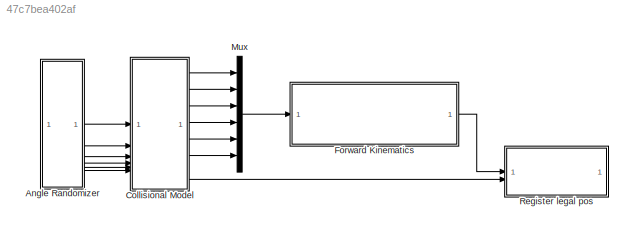
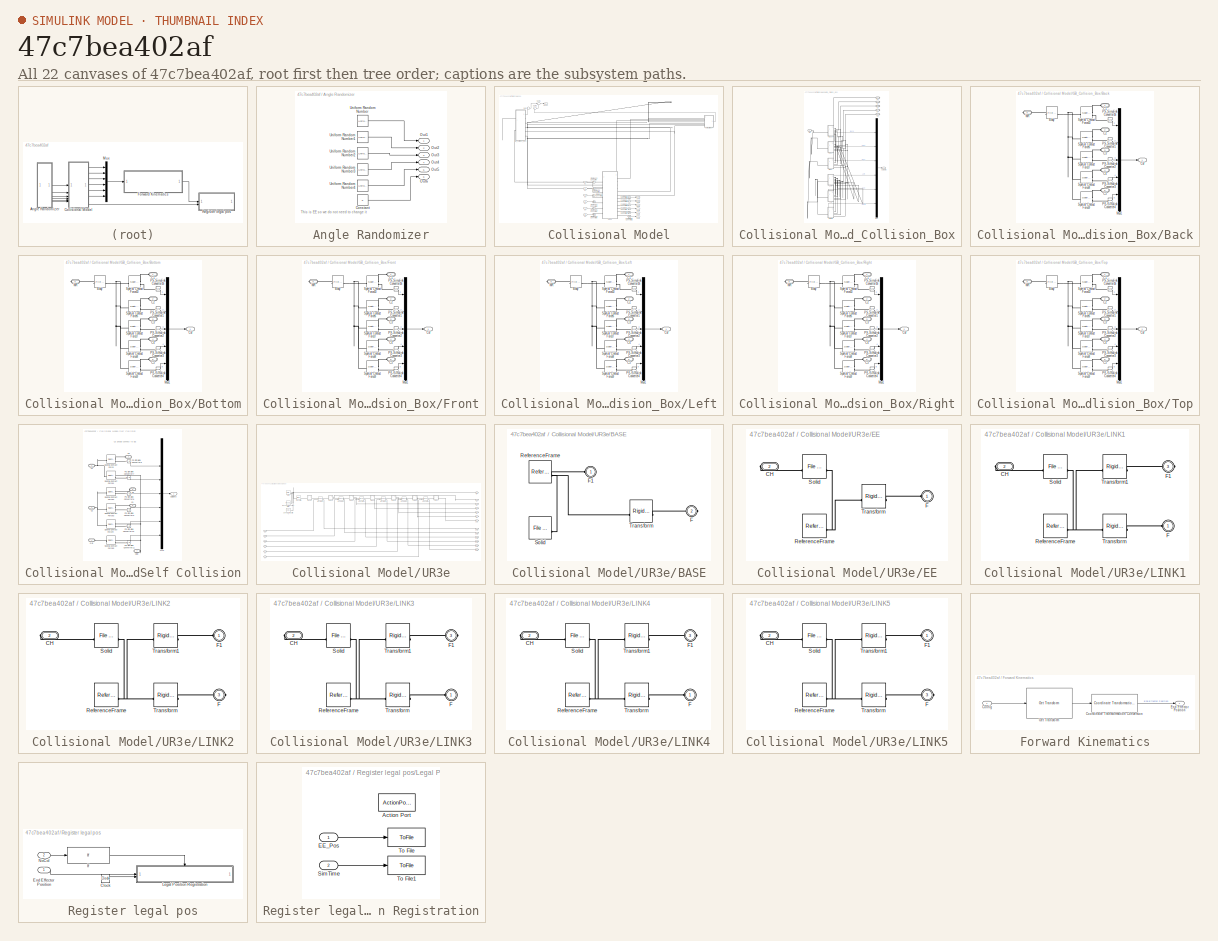
[diagram: thumbnail index - all 22 canvases of the model, root first then tree order]
MODEL slx_47c7bea402af
KIND model
CONFIG AbsTol = auto
CONFIG EnableMultiTasking = off
CONFIG FixedStep = auto
CONFIG MaxStep = auto
CONFIG MinStep = auto
CONFIG RelTol = 1e-3
CONFIG SampleTimeConstraint = Unconstrained
CONFIG SolverName = VariableStepAuto
CONFIG StartTime = 0.0
CONFIG StopTime = 60
WORKSPACE source: external: MATLAB File  (data not in archive)
BLOCK [SubSystem] Angle Randomizer
BLOCK [Constant] Angle Randomizer/Constant
  Value = 0
BLOCK [Outport] Angle Randomizer/Out1
BLOCK [Outport] Angle Randomizer/Out2
  Port = 2
BLOCK [Outport] Angle Randomizer/Out3
  Port = 3
BLOCK [Outport] Angle Randomizer/Out4
  Port = 4
BLOCK [Outport] Angle Randomizer/Out5
  Port = 5
BLOCK [Outport] Angle Randomizer/Out6
  Port = 6
BLOCK [UniformRandomNumber] Angle Randomizer/Uniform Random Number
  Maximum = pi
  Minimum = -pi
  SampleTime = simulation_parameters.sample_time
BLOCK [UniformRandomNumber] Angle Randomizer/Uniform Random Number1
  Maximum = pi
  Minimum = -pi
  SampleTime = simulation_parameters.sample_time
  Seed = 1
BLOCK [UniformRandomNumber] Angle Randomizer/Uniform Random Number2
  Maximum = pi
  Minimum = -pi
  SampleTime = simulation_parameters.sample_time
  Seed = 2
BLOCK [UniformRandomNumber] Angle Randomizer/Uniform Random Number3
  Maximum = pi
  Minimum = -pi
  SampleTime = simulation_parameters.sample_time
  Seed = 3
BLOCK [UniformRandomNumber] Angle Randomizer/Uniform Random Number4
  Maximum = pi
  Minimum = -pi
  SampleTime = simulation_parameters.sample_time
  Seed = 4
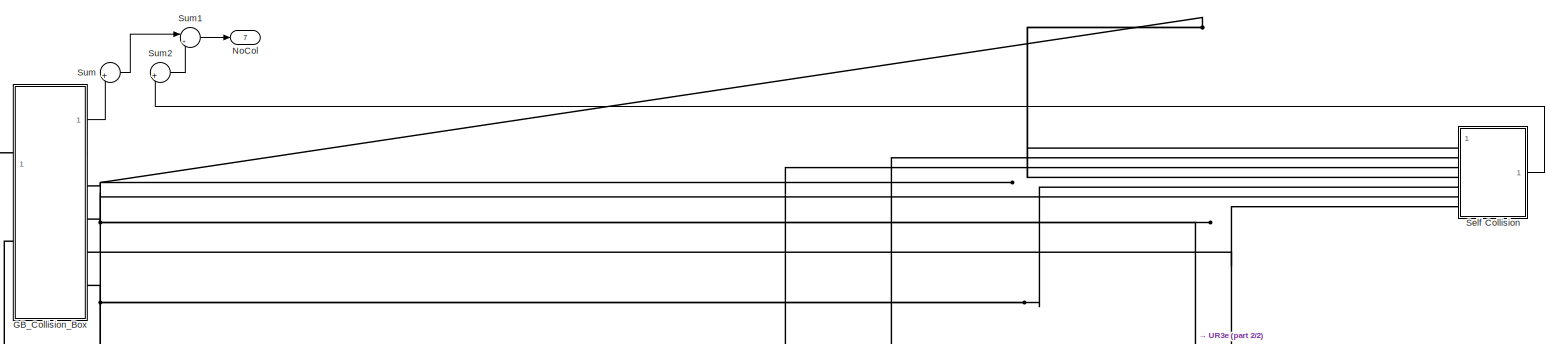
[diagram: Collisional Model - part 1/2, full width, top band]
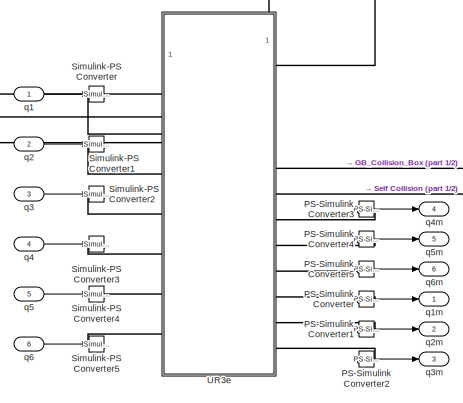
[diagram: Collisional Model - part 2/2, bottom center region]
BLOCK [SubSystem] Collisional Model
BLOCK [SubSystem] Collisional Model/GB_Collision_Box
BLOCK [SubSystem] Collisional Model/GB_Collision_Box/Back
  PortSchema = {"entries":[{"content":{"sides":[{"content":{"connectorIds":["Out1","LConn1","LConn2","LConn3","LConn4","LConn5"]},"type":"ConnectorPlacement.EquallySpacedRectSide","uuid":"f6bf8309-3a61-479f-a747-1123ec87f5cc"},{"content":{"connectorIds":["RConn1"],"side":"RIGHT"},"type":"ConnectorPlacement.EquallySpacedRectSide","uuid":"b0f1017d-061c-4274-8acc-6a947b17e7e9"},{"content":{"side":"TOP"},"type":"Con...<+270ch>  <repeated x6 — deduplicated; at blocks: Back, Bottom, Front, Left, Right, Top>
BLOCK [Reference] Collisional Model/GB_Collision_Box/Back/Body  REF=sm_lib/Body Elements/File Solid
  SourceBlock = sm_lib/Body Elements/File Solid
  SourceType = File Solid
BLOCK [PMIOPort] Collisional Model/GB_Collision_Box/Back/C1
  Side = Left
BLOCK [PMIOPort] Collisional Model/GB_Collision_Box/Back/C2
  Port = 2
  Side = Left
BLOCK [PMIOPort] Collisional Model/GB_Collision_Box/Back/C3
  Port = 3
  Side = Left
BLOCK [PMIOPort] Collisional Model/GB_Collision_Box/Back/C4
  Port = 4
  Side = Left
BLOCK [PMIOPort] Collisional Model/GB_Collision_Box/Back/C5
  Port = 5
  Side = Left
BLOCK [Outport] Collisional Model/GB_Collision_Box/Back/Col
BLOCK [Mux] Collisional Model/GB_Collision_Box/Back/Mux1
  DisplayOption = bar
  Inputs = 5
BLOCK [Reference] Collisional Model/GB_Collision_Box/Back/PS-Simulink Converter1  REF=nesl_utility/PS-Simulink
Converter
  SourceBlock = nesl_utility/PS-Simulink\nConverter
  SourceType = PS-Simulink\nConverter
BLOCK [Reference] Collisional Model/GB_Collision_Box/Back/PS-Simulink Converter16  REF=nesl_utility/PS-Simulink
Converter
  SourceBlock = nesl_utility/PS-Simulink\nConverter
  SourceType = PS-Simulink\nConverter
BLOCK [Reference] Collisional Model/GB_Collision_Box/Back/PS-Simulink Converter2  REF=nesl_utility/PS-Simulink
Converter
  SourceBlock = nesl_utility/PS-Simulink\nConverter
  SourceType = PS-Simulink\nConverter
BLOCK [Reference] Collisional Model/GB_Collision_Box/Back/PS-Simulink Converter3  REF=nesl_utility/PS-Simulink
Converter
  SourceBlock = nesl_utility/PS-Simulink\nConverter
  SourceType = PS-Simulink\nConverter
BLOCK [Reference] Collisional Model/GB_Collision_Box/Back/PS-Simulink Converter4  REF=nesl_utility/PS-Simulink
Converter
  SourceBlock = nesl_utility/PS-Simulink\nConverter
  SourceType = PS-Simulink\nConverter
BLOCK [Reference] Collisional Model/GB_Collision_Box/Back/Spatial Contact Force10  REF=sm_lib/Forces and
Torques/Spatial
Contact Force
  NameLocation = left
  SourceBlock = sm_lib/Forces and\nTorques/Spatial\nContact Force
  SourceType = Spatial\nContact Force
BLOCK [Reference] Collisional Model/GB_Collision_Box/Back/Spatial Contact Force6  REF=sm_lib/Forces and
Torques/Spatial
Contact Force
  SourceBlock = sm_lib/Forces and\nTorques/Spatial\nContact Force
  SourceType = Spatial\nContact Force
BLOCK [Reference] Collisional Model/GB_Collision_Box/Back/Spatial Contact Force7  REF=sm_lib/Forces and
Torques/Spatial
Contact Force
  SourceBlock = sm_lib/Forces and\nTorques/Spatial\nContact Force
  SourceType = Spatial\nContact Force
BLOCK [Reference] Collisional Model/GB_Collision_Box/Back/Spatial Contact Force8  REF=sm_lib/Forces and
Torques/Spatial
Contact Force
  SourceBlock = sm_lib/Forces and\nTorques/Spatial\nContact Force
  SourceType = Spatial\nContact Force
BLOCK [Reference] Collisional Model/GB_Collision_Box/Back/Spatial Contact Force9  REF=sm_lib/Forces and
Torques/Spatial
Contact Force
  NameLocation = left
  SourceBlock = sm_lib/Forces and\nTorques/Spatial\nContact Force
  SourceType = Spatial\nContact Force
BLOCK [PMIOPort] Collisional Model/GB_Collision_Box/Back/WR
  Port = 6
  Side = Right
BLOCK [SubSystem] Collisional Model/GB_Collision_Box/Bottom
BLOCK [Reference] Collisional Model/GB_Collision_Box/Bottom/Body  REF=sm_lib/Body Elements/File Solid
  SourceBlock = sm_lib/Body Elements/File Solid
  SourceType = File Solid
BLOCK [PMIOPort] Collisional Model/GB_Collision_Box/Bottom/C1
  Side = Left
BLOCK [PMIOPort] Collisional Model/GB_Collision_Box/Bottom/C2
  Port = 2
  Side = Left
BLOCK [PMIOPort] Collisional Model/GB_Collision_Box/Bottom/C3
  Port = 3
  Side = Left
BLOCK [PMIOPort] Collisional Model/GB_Collision_Box/Bottom/C4
  Port = 4
  Side = Left
BLOCK [PMIOPort] Collisional Model/GB_Collision_Box/Bottom/C5
  Port = 5
  Side = Left
BLOCK [Outport] Collisional Model/GB_Collision_Box/Bottom/Col
BLOCK [Mux] Collisional Model/GB_Collision_Box/Bottom/Mux1
  DisplayOption = bar
  Inputs = 5
BLOCK [Reference] Collisional Model/GB_Collision_Box/Bottom/PS-Simulink Converter1  REF=nesl_utility/PS-Simulink
Converter
  SourceBlock = nesl_utility/PS-Simulink\nConverter
  SourceType = PS-Simulink\nConverter
BLOCK [Reference] Collisional Model/GB_Collision_Box/Bottom/PS-Simulink Converter16  REF=nesl_utility/PS-Simulink
Converter
  SourceBlock = nesl_utility/PS-Simulink\nConverter
  SourceType = PS-Simulink\nConverter
BLOCK [Reference] Collisional Model/GB_Collision_Box/Bottom/PS-Simulink Converter2  REF=nesl_utility/PS-Simulink
Converter
  SourceBlock = nesl_utility/PS-Simulink\nConverter
  SourceType = PS-Simulink\nConverter
BLOCK [Reference] Collisional Model/GB_Collision_Box/Bottom/PS-Simulink Converter3  REF=nesl_utility/PS-Simulink
Converter
  SourceBlock = nesl_utility/PS-Simulink\nConverter
  SourceType = PS-Simulink\nConverter
BLOCK [Reference] Collisional Model/GB_Collision_Box/Bottom/PS-Simulink Converter4  REF=nesl_utility/PS-Simulink
Converter
  SourceBlock = nesl_utility/PS-Simulink\nConverter
  SourceType = PS-Simulink\nConverter
BLOCK [Reference] Collisional Model/GB_Collision_Box/Bottom/Spatial Contact Force10  REF=sm_lib/Forces and
Torques/Spatial
Contact Force
  NameLocation = left
  SourceBlock = sm_lib/Forces and\nTorques/Spatial\nContact Force
  SourceType = Spatial\nContact Force
BLOCK [Reference] Collisional Model/GB_Collision_Box/Bottom/Spatial Contact Force6  REF=sm_lib/Forces and
Torques/Spatial
Contact Force
  SourceBlock = sm_lib/Forces and\nTorques/Spatial\nContact Force
  SourceType = Spatial\nContact Force
BLOCK [Reference] Collisional Model/GB_Collision_Box/Bottom/Spatial Contact Force7  REF=sm_lib/Forces and
Torques/Spatial
Contact Force
  SourceBlock = sm_lib/Forces and\nTorques/Spatial\nContact Force
  SourceType = Spatial\nContact Force
BLOCK [Reference] Collisional Model/GB_Collision_Box/Bottom/Spatial Contact Force8  REF=sm_lib/Forces and
Torques/Spatial
Contact Force
  SourceBlock = sm_lib/Forces and\nTorques/Spatial\nContact Force
  SourceType = Spatial\nContact Force
BLOCK [Reference] Collisional Model/GB_Collision_Box/Bottom/Spatial Contact Force9  REF=sm_lib/Forces and
Torques/Spatial
Contact Force
  NameLocation = left
  SourceBlock = sm_lib/Forces and\nTorques/Spatial\nContact Force
  SourceType = Spatial\nContact Force
BLOCK [PMIOPort] Collisional Model/GB_Collision_Box/Bottom/WR
  Port = 6
  Side = Right
BLOCK [PMIOPort] Collisional Model/GB_Collision_Box/C1
  Port = 2
  Side = Right
BLOCK [PMIOPort] Collisional Model/GB_Collision_Box/C2
  Port = 3
  Side = Right
BLOCK [PMIOPort] Collisional Model/GB_Collision_Box/C3
  Port = 4
  Side = Right
BLOCK [PMIOPort] Collisional Model/GB_Collision_Box/C4
  Port = 5
  Side = Right
BLOCK [PMIOPort] Collisional Model/GB_Collision_Box/C5
  Port = 6
  Side = Right
BLOCK [Outport] Collisional Model/GB_Collision_Box/ColData
BLOCK [SubSystem] Collisional Model/GB_Collision_Box/Front
BLOCK [Reference] Collisional Model/GB_Collision_Box/Front/Body  REF=sm_lib/Body Elements/File Solid
  SourceBlock = sm_lib/Body Elements/File Solid
  SourceType = File Solid
BLOCK [PMIOPort] Collisional Model/GB_Collision_Box/Front/C1
  Side = Left
BLOCK [PMIOPort] Collisional Model/GB_Collision_Box/Front/C2
  Port = 2
  Side = Left
BLOCK [PMIOPort] Collisional Model/GB_Collision_Box/Front/C3
  Port = 3
  Side = Left
BLOCK [PMIOPort] Collisional Model/GB_Collision_Box/Front/C4
  Port = 4
  Side = Left
BLOCK [PMIOPort] Collisional Model/GB_Collision_Box/Front/C5
  Port = 5
  Side = Left
BLOCK [Outport] Collisional Model/GB_Collision_Box/Front/Col
BLOCK [Mux] Collisional Model/GB_Collision_Box/Front/Mux1
  DisplayOption = bar
  Inputs = 5
BLOCK [Reference] Collisional Model/GB_Collision_Box/Front/PS-Simulink Converter1  REF=nesl_utility/PS-Simulink
Converter
  SourceBlock = nesl_utility/PS-Simulink\nConverter
  SourceType = PS-Simulink\nConverter
BLOCK [Reference] Collisional Model/GB_Collision_Box/Front/PS-Simulink Converter16  REF=nesl_utility/PS-Simulink
Converter
  SourceBlock = nesl_utility/PS-Simulink\nConverter
  SourceType = PS-Simulink\nConverter
BLOCK [Reference] Collisional Model/GB_Collision_Box/Front/PS-Simulink Converter2  REF=nesl_utility/PS-Simulink
Converter
  SourceBlock = nesl_utility/PS-Simulink\nConverter
  SourceType = PS-Simulink\nConverter
BLOCK [Reference] Collisional Model/GB_Collision_Box/Front/PS-Simulink Converter3  REF=nesl_utility/PS-Simulink
Converter
  SourceBlock = nesl_utility/PS-Simulink\nConverter
  SourceType = PS-Simulink\nConverter
BLOCK [Reference] Collisional Model/GB_Collision_Box/Front/PS-Simulink Converter4  REF=nesl_utility/PS-Simulink
Converter
  SourceBlock = nesl_utility/PS-Simulink\nConverter
  SourceType = PS-Simulink\nConverter
BLOCK [Reference] Collisional Model/GB_Collision_Box/Front/Spatial Contact Force10  REF=sm_lib/Forces and
Torques/Spatial
Contact Force
  NameLocation = left
  SourceBlock = sm_lib/Forces and\nTorques/Spatial\nContact Force
  SourceType = Spatial\nContact Force
BLOCK [Reference] Collisional Model/GB_Collision_Box/Front/Spatial Contact Force6  REF=sm_lib/Forces and
Torques/Spatial
Contact Force
  SourceBlock = sm_lib/Forces and\nTorques/Spatial\nContact Force
  SourceType = Spatial\nContact Force
BLOCK [Reference] Collisional Model/GB_Collision_Box/Front/Spatial Contact Force7  REF=sm_lib/Forces and
Torques/Spatial
Contact Force
  SourceBlock = sm_lib/Forces and\nTorques/Spatial\nContact Force
  SourceType = Spatial\nContact Force
BLOCK [Reference] Collisional Model/GB_Collision_Box/Front/Spatial Contact Force8  REF=sm_lib/Forces and
Torques/Spatial
Contact Force
  SourceBlock = sm_lib/Forces and\nTorques/Spatial\nContact Force
  SourceType = Spatial\nContact Force
BLOCK [Reference] Collisional Model/GB_Collision_Box/Front/Spatial Contact Force9  REF=sm_lib/Forces and
Torques/Spatial
Contact Force
  NameLocation = left
  SourceBlock = sm_lib/Forces and\nTorques/Spatial\nContact Force
  SourceType = Spatial\nContact Force
BLOCK [PMIOPort] Collisional Model/GB_Collision_Box/Front/WR
  Port = 6
  Side = Right
BLOCK [SubSystem] Collisional Model/GB_Collision_Box/Left
BLOCK [Reference] Collisional Model/GB_Collision_Box/Left/Body  REF=sm_lib/Body Elements/File Solid
  SourceBlock = sm_lib/Body Elements/File Solid
  SourceType = File Solid
BLOCK [PMIOPort] Collisional Model/GB_Collision_Box/Left/C1
  Side = Left
BLOCK [PMIOPort] Collisional Model/GB_Collision_Box/Left/C2
  Port = 2
  Side = Left
BLOCK [PMIOPort] Collisional Model/GB_Collision_Box/Left/C3
  Port = 3
  Side = Left
BLOCK [PMIOPort] Collisional Model/GB_Collision_Box/Left/C4
  Port = 4
  Side = Left
BLOCK [PMIOPort] Collisional Model/GB_Collision_Box/Left/C5
  Port = 5
  Side = Left
BLOCK [Outport] Collisional Model/GB_Collision_Box/Left/Col
BLOCK [Mux] Collisional Model/GB_Collision_Box/Left/Mux1
  DisplayOption = bar
  Inputs = 5
BLOCK [Reference] Collisional Model/GB_Collision_Box/Left/PS-Simulink Converter1  REF=nesl_utility/PS-Simulink
Converter
  SourceBlock = nesl_utility/PS-Simulink\nConverter
  SourceType = PS-Simulink\nConverter
BLOCK [Reference] Collisional Model/GB_Collision_Box/Left/PS-Simulink Converter16  REF=nesl_utility/PS-Simulink
Converter
  SourceBlock = nesl_utility/PS-Simulink\nConverter
  SourceType = PS-Simulink\nConverter
BLOCK [Reference] Collisional Model/GB_Collision_Box/Left/PS-Simulink Converter2  REF=nesl_utility/PS-Simulink
Converter
  SourceBlock = nesl_utility/PS-Simulink\nConverter
  SourceType = PS-Simulink\nConverter
BLOCK [Reference] Collisional Model/GB_Collision_Box/Left/PS-Simulink Converter3  REF=nesl_utility/PS-Simulink
Converter
  SourceBlock = nesl_utility/PS-Simulink\nConverter
  SourceType = PS-Simulink\nConverter
BLOCK [Reference] Collisional Model/GB_Collision_Box/Left/PS-Simulink Converter4  REF=nesl_utility/PS-Simulink
Converter
  SourceBlock = nesl_utility/PS-Simulink\nConverter
  SourceType = PS-Simulink\nConverter
BLOCK [Reference] Collisional Model/GB_Collision_Box/Left/Spatial Contact Force10  REF=sm_lib/Forces and
Torques/Spatial
Contact Force
  NameLocation = left
  SourceBlock = sm_lib/Forces and\nTorques/Spatial\nContact Force
  SourceType = Spatial\nContact Force
BLOCK [Reference] Collisional Model/GB_Collision_Box/Left/Spatial Contact Force6  REF=sm_lib/Forces and
Torques/Spatial
Contact Force
  SourceBlock = sm_lib/Forces and\nTorques/Spatial\nContact Force
  SourceType = Spatial\nContact Force
BLOCK [Reference] Collisional Model/GB_Collision_Box/Left/Spatial Contact Force7  REF=sm_lib/Forces and
Torques/Spatial
Contact Force
  SourceBlock = sm_lib/Forces and\nTorques/Spatial\nContact Force
  SourceType = Spatial\nContact Force
BLOCK [Reference] Collisional Model/GB_Collision_Box/Left/Spatial Contact Force8  REF=sm_lib/Forces and
Torques/Spatial
Contact Force
  SourceBlock = sm_lib/Forces and\nTorques/Spatial\nContact Force
  SourceType = Spatial\nContact Force
BLOCK [Reference] Collisional Model/GB_Collision_Box/Left/Spatial Contact Force9  REF=sm_lib/Forces and
Torques/Spatial
Contact Force
  NameLocation = left
  SourceBlock = sm_lib/Forces and\nTorques/Spatial\nContact Force
  SourceType = Spatial\nContact Force
BLOCK [PMIOPort] Collisional Model/GB_Collision_Box/Left/WR
  Port = 6
  Side = Right
BLOCK [Mux] Collisional Model/GB_Collision_Box/Mux
  DisplayOption = bar
  Inputs = 6
BLOCK [SubSystem] Collisional Model/GB_Collision_Box/Right
BLOCK [Reference] Collisional Model/GB_Collision_Box/Right/Body  REF=sm_lib/Body Elements/File Solid
  SourceBlock = sm_lib/Body Elements/File Solid
  SourceType = File Solid
BLOCK [PMIOPort] Collisional Model/GB_Collision_Box/Right/C1
  Side = Left
BLOCK [PMIOPort] Collisional Model/GB_Collision_Box/Right/C2
  Port = 2
  Side = Left
BLOCK [PMIOPort] Collisional Model/GB_Collision_Box/Right/C3
  Port = 3
  Side = Left
BLOCK [PMIOPort] Collisional Model/GB_Collision_Box/Right/C4
  Port = 4
  Side = Left
BLOCK [PMIOPort] Collisional Model/GB_Collision_Box/Right/C5
  Port = 5
  Side = Left
BLOCK [Outport] Collisional Model/GB_Collision_Box/Right/Col
BLOCK [Mux] Collisional Model/GB_Collision_Box/Right/Mux1
  DisplayOption = bar
  Inputs = 5
BLOCK [Reference] Collisional Model/GB_Collision_Box/Right/PS-Simulink Converter1  REF=nesl_utility/PS-Simulink
Converter
  SourceBlock = nesl_utility/PS-Simulink\nConverter
  SourceType = PS-Simulink\nConverter
BLOCK [Reference] Collisional Model/GB_Collision_Box/Right/PS-Simulink Converter16  REF=nesl_utility/PS-Simulink
Converter
  SourceBlock = nesl_utility/PS-Simulink\nConverter
  SourceType = PS-Simulink\nConverter
BLOCK [Reference] Collisional Model/GB_Collision_Box/Right/PS-Simulink Converter2  REF=nesl_utility/PS-Simulink
Converter
  SourceBlock = nesl_utility/PS-Simulink\nConverter
  SourceType = PS-Simulink\nConverter
BLOCK [Reference] Collisional Model/GB_Collision_Box/Right/PS-Simulink Converter3  REF=nesl_utility/PS-Simulink
Converter
  SourceBlock = nesl_utility/PS-Simulink\nConverter
  SourceType = PS-Simulink\nConverter
BLOCK [Reference] Collisional Model/GB_Collision_Box/Right/PS-Simulink Converter4  REF=nesl_utility/PS-Simulink
Converter
  SourceBlock = nesl_utility/PS-Simulink\nConverter
  SourceType = PS-Simulink\nConverter
BLOCK [Reference] Collisional Model/GB_Collision_Box/Right/Spatial Contact Force10  REF=sm_lib/Forces and
Torques/Spatial
Contact Force
  NameLocation = left
  SourceBlock = sm_lib/Forces and\nTorques/Spatial\nContact Force
  SourceType = Spatial\nContact Force
BLOCK [Reference] Collisional Model/GB_Collision_Box/Right/Spatial Contact Force6  REF=sm_lib/Forces and
Torques/Spatial
Contact Force
  SourceBlock = sm_lib/Forces and\nTorques/Spatial\nContact Force
  SourceType = Spatial\nContact Force
BLOCK [Reference] Collisional Model/GB_Collision_Box/Right/Spatial Contact Force7  REF=sm_lib/Forces and
Torques/Spatial
Contact Force
  SourceBlock = sm_lib/Forces and\nTorques/Spatial\nContact Force
  SourceType = Spatial\nContact Force
BLOCK [Reference] Collisional Model/GB_Collision_Box/Right/Spatial Contact Force8  REF=sm_lib/Forces and
Torques/Spatial
Contact Force
  SourceBlock = sm_lib/Forces and\nTorques/Spatial\nContact Force
  SourceType = Spatial\nContact Force
BLOCK [Reference] Collisional Model/GB_Collision_Box/Right/Spatial Contact Force9  REF=sm_lib/Forces and
Torques/Spatial
Contact Force
  NameLocation = left
  SourceBlock = sm_lib/Forces and\nTorques/Spatial\nContact Force
  SourceType = Spatial\nContact Force
BLOCK [PMIOPort] Collisional Model/GB_Collision_Box/Right/WR
  Port = 6
  Side = Right
BLOCK [SubSystem] Collisional Model/GB_Collision_Box/Top
BLOCK [Reference] Collisional Model/GB_Collision_Box/Top/Body  REF=sm_lib/Body Elements/File Solid
  SourceBlock = sm_lib/Body Elements/File Solid
  SourceType = File Solid
BLOCK [PMIOPort] Collisional Model/GB_Collision_Box/Top/C1
  Side = Left
BLOCK [PMIOPort] Collisional Model/GB_Collision_Box/Top/C2
  Port = 2
  Side = Left
BLOCK [PMIOPort] Collisional Model/GB_Collision_Box/Top/C3
  Port = 3
  Side = Left
BLOCK [PMIOPort] Collisional Model/GB_Collision_Box/Top/C4
  Port = 4
  Side = Left
BLOCK [PMIOPort] Collisional Model/GB_Collision_Box/Top/C5
  Port = 5
  Side = Left
BLOCK [Outport] Collisional Model/GB_Collision_Box/Top/Col
BLOCK [Mux] Collisional Model/GB_Collision_Box/Top/Mux1
  DisplayOption = bar
  Inputs = 5
BLOCK [Reference] Collisional Model/GB_Collision_Box/Top/PS-Simulink Converter1  REF=nesl_utility/PS-Simulink
Converter
  SourceBlock = nesl_utility/PS-Simulink\nConverter
  SourceType = PS-Simulink\nConverter
BLOCK [Reference] Collisional Model/GB_Collision_Box/Top/PS-Simulink Converter16  REF=nesl_utility/PS-Simulink
Converter
  SourceBlock = nesl_utility/PS-Simulink\nConverter
  SourceType = PS-Simulink\nConverter
BLOCK [Reference] Collisional Model/GB_Collision_Box/Top/PS-Simulink Converter2  REF=nesl_utility/PS-Simulink
Converter
  SourceBlock = nesl_utility/PS-Simulink\nConverter
  SourceType = PS-Simulink\nConverter
BLOCK [Reference] Collisional Model/GB_Collision_Box/Top/PS-Simulink Converter3  REF=nesl_utility/PS-Simulink
Converter
  SourceBlock = nesl_utility/PS-Simulink\nConverter
  SourceType = PS-Simulink\nConverter
BLOCK [Reference] Collisional Model/GB_Collision_Box/Top/PS-Simulink Converter4  REF=nesl_utility/PS-Simulink
Converter
  SourceBlock = nesl_utility/PS-Simulink\nConverter
  SourceType = PS-Simulink\nConverter
BLOCK [Reference] Collisional Model/GB_Collision_Box/Top/Spatial Contact Force10  REF=sm_lib/Forces and
Torques/Spatial
Contact Force
  NameLocation = left
  SourceBlock = sm_lib/Forces and\nTorques/Spatial\nContact Force
  SourceType = Spatial\nContact Force
BLOCK [Reference] Collisional Model/GB_Collision_Box/Top/Spatial Contact Force6  REF=sm_lib/Forces and
Torques/Spatial
Contact Force
  SourceBlock = sm_lib/Forces and\nTorques/Spatial\nContact Force
  SourceType = Spatial\nContact Force
BLOCK [Reference] Collisional Model/GB_Collision_Box/Top/Spatial Contact Force7  REF=sm_lib/Forces and
Torques/Spatial
Contact Force
  SourceBlock = sm_lib/Forces and\nTorques/Spatial\nContact Force
  SourceType = Spatial\nContact Force
BLOCK [Reference] Collisional Model/GB_Collision_Box/Top/Spatial Contact Force8  REF=sm_lib/Forces and
Torques/Spatial
Contact Force
  SourceBlock = sm_lib/Forces and\nTorques/Spatial\nContact Force
  SourceType = Spatial\nContact Force
BLOCK [Reference] Collisional Model/GB_Collision_Box/Top/Spatial Contact Force9  REF=sm_lib/Forces and
Torques/Spatial
Contact Force
  NameLocation = left
  SourceBlock = sm_lib/Forces and\nTorques/Spatial\nContact Force
  SourceType = Spatial\nContact Force
BLOCK [PMIOPort] Collisional Model/GB_Collision_Box/Top/WR
  Port = 6
  Side = Right
BLOCK [PMIOPort] Collisional Model/GB_Collision_Box/WR
  Side = Left
BLOCK [Outport] Collisional Model/NoCol
  Port = 7
BLOCK [Reference] Collisional Model/PS-Simulink Converter  REF=nesl_utility/PS-Simulink
Converter
  SourceBlock = nesl_utility/PS-Simulink\nConverter
  SourceType = PS-Simulink\nConverter
BLOCK [Reference] Collisional Model/PS-Simulink Converter1  REF=nesl_utility/PS-Simulink
Converter
  SourceBlock = nesl_utility/PS-Simulink\nConverter
  SourceType = PS-Simulink\nConverter
BLOCK [Reference] Collisional Model/PS-Simulink Converter2  REF=nesl_utility/PS-Simulink
Converter
  SourceBlock = nesl_utility/PS-Simulink\nConverter
  SourceType = PS-Simulink\nConverter
BLOCK [Reference] Collisional Model/PS-Simulink Converter3  REF=nesl_utility/PS-Simulink
Converter
  SourceBlock = nesl_utility/PS-Simulink\nConverter
  SourceType = PS-Simulink\nConverter
BLOCK [Reference] Collisional Model/PS-Simulink Converter4  REF=nesl_utility/PS-Simulink
Converter
  SourceBlock = nesl_utility/PS-Simulink\nConverter
  SourceType = PS-Simulink\nConverter
BLOCK [Reference] Collisional Model/PS-Simulink Converter5  REF=nesl_utility/PS-Simulink
Converter
  SourceBlock = nesl_utility/PS-Simulink\nConverter
  SourceType = PS-Simulink\nConverter
BLOCK [SubSystem] Collisional Model/Self Collision
BLOCK [PMIOPort] Collisional Model/Self Collision/C1
  Port = 2
  Side = Left
BLOCK [PMIOPort] Collisional Model/Self Collision/C2
  Port = 3
  Side = Left
BLOCK [PMIOPort] Collisional Model/Self Collision/C3
  Port = 4
  Side = Left
BLOCK [PMIOPort] Collisional Model/Self Collision/C4
  Port = 5
  Side = Left
BLOCK [PMIOPort] Collisional Model/Self Collision/C5
  Port = 6
  Side = Left
BLOCK [PMIOPort] Collisional Model/Self Collision/CEE
  Port = 7
  Side = Left
BLOCK [Outport] Collisional Model/Self Collision/ColData
BLOCK [PMIOPort] Collisional Model/Self Collision/GB
  Side = Left
BLOCK [Mux] Collisional Model/Self Collision/Mux
  DisplayOption = bar
  Inputs = 7
BLOCK [Reference] Collisional Model/Self Collision/PS-Simulink Converter10  REF=nesl_utility/PS-Simulink
Converter
  SourceBlock = nesl_utility/PS-Simulink\nConverter
  SourceType = PS-Simulink\nConverter
BLOCK [Reference] Collisional Model/Self Collision/PS-Simulink Converter11  REF=nesl_utility/PS-Simulink
Converter
  SourceBlock = nesl_utility/PS-Simulink\nConverter
  SourceType = PS-Simulink\nConverter
BLOCK [Reference] Collisional Model/Self Collision/PS-Simulink Converter6  REF=nesl_utility/PS-Simulink
Converter
  SourceBlock = nesl_utility/PS-Simulink\nConverter
  SourceType = PS-Simulink\nConverter
BLOCK [Reference] Collisional Model/Self Collision/PS-Simulink Converter7  REF=nesl_utility/PS-Simulink
Converter
  SourceBlock = nesl_utility/PS-Simulink\nConverter
  SourceType = PS-Simulink\nConverter
BLOCK [Reference] Collisional Model/Self Collision/PS-Simulink Converter8  REF=nesl_utility/PS-Simulink
Converter
  SourceBlock = nesl_utility/PS-Simulink\nConverter
  SourceType = PS-Simulink\nConverter
BLOCK [Reference] Collisional Model/Self Collision/PS-Simulink Converter9  REF=nesl_utility/PS-Simulink
Converter
  SourceBlock = nesl_utility/PS-Simulink\nConverter
  SourceType = PS-Simulink\nConverter
BLOCK [Reference] Collisional Model/Self Collision/Spatial Contact Force  REF=sm_lib/Forces and
Torques/Spatial
Contact Force
  SourceBlock = sm_lib/Forces and\nTorques/Spatial\nContact Force
  SourceType = Spatial\nContact Force
BLOCK [Reference] Collisional Model/Self Collision/Spatial Contact Force1  REF=sm_lib/Forces and
Torques/Spatial
Contact Force
  SourceBlock = sm_lib/Forces and\nTorques/Spatial\nContact Force
  SourceType = Spatial\nContact Force
BLOCK [Reference] Collisional Model/Self Collision/Spatial Contact Force2  REF=sm_lib/Forces and
Torques/Spatial
Contact Force
  SourceBlock = sm_lib/Forces and\nTorques/Spatial\nContact Force
  SourceType = Spatial\nContact Force
BLOCK [Reference] Collisional Model/Self Collision/Spatial Contact Force3  REF=sm_lib/Forces and
Torques/Spatial
Contact Force
  SourceBlock = sm_lib/Forces and\nTorques/Spatial\nContact Force
  SourceType = Spatial\nContact Force
BLOCK [Reference] Collisional Model/Self Collision/Spatial Contact Force4  REF=sm_lib/Forces and
Torques/Spatial
Contact Force
  SourceBlock = sm_lib/Forces and\nTorques/Spatial\nContact Force
  SourceType = Spatial\nContact Force
BLOCK [Reference] Collisional Model/Self Collision/Spatial Contact Force5  REF=sm_lib/Forces and
Torques/Spatial
Contact Force
  NameLocation = left
  SourceBlock = sm_lib/Forces and\nTorques/Spatial\nContact Force
  SourceType = Spatial\nContact Force
BLOCK [Reference] Collisional Model/Simulink-PS Converter  REF=nesl_utility/Simulink-PS
Converter
  SourceBlock = nesl_utility/Simulink-PS\nConverter
  SourceType = Simulink-PS\nConverter
BLOCK [Reference] Collisional Model/Simulink-PS Converter1  REF=nesl_utility/Simulink-PS
Converter
  SourceBlock = nesl_utility/Simulink-PS\nConverter
  SourceType = Simulink-PS\nConverter
BLOCK [Reference] Collisional Model/Simulink-PS Converter2  REF=nesl_utility/Simulink-PS
Converter
  SourceBlock = nesl_utility/Simulink-PS\nConverter
  SourceType = Simulink-PS\nConverter
BLOCK [Reference] Collisional Model/Simulink-PS Converter3  REF=nesl_utility/Simulink-PS
Converter
  SourceBlock = nesl_utility/Simulink-PS\nConverter
  SourceType = Simulink-PS\nConverter
BLOCK [Reference] Collisional Model/Simulink-PS Converter4  REF=nesl_utility/Simulink-PS
Converter
  SourceBlock = nesl_utility/Simulink-PS\nConverter
  SourceType = Simulink-PS\nConverter
BLOCK [Reference] Collisional Model/Simulink-PS Converter5  REF=nesl_utility/Simulink-PS
Converter
  SourceBlock = nesl_utility/Simulink-PS\nConverter
  SourceType = Simulink-PS\nConverter
BLOCK [Sum] Collisional Model/Sum
  Inputs = |+
BLOCK [Sum] Collisional Model/Sum1
  Inputs = |++
BLOCK [Sum] Collisional Model/Sum2
  Inputs = |+
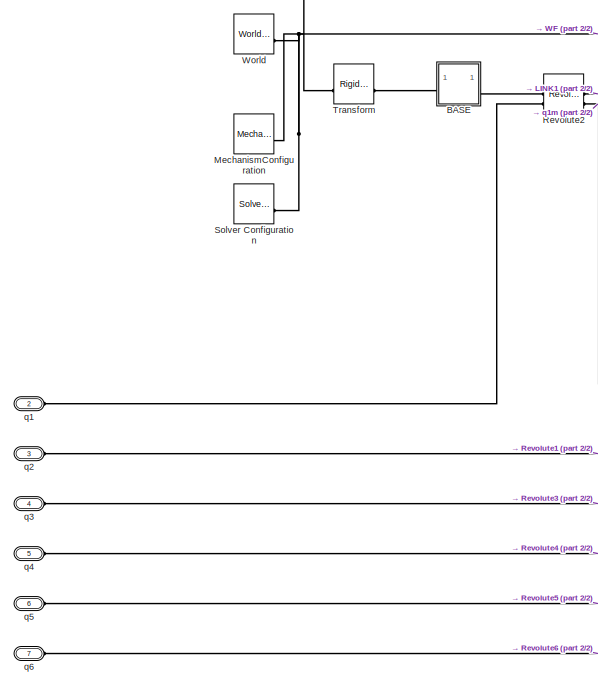
[diagram: Collisional Model/UR3e - part 1/2, left side, full height]
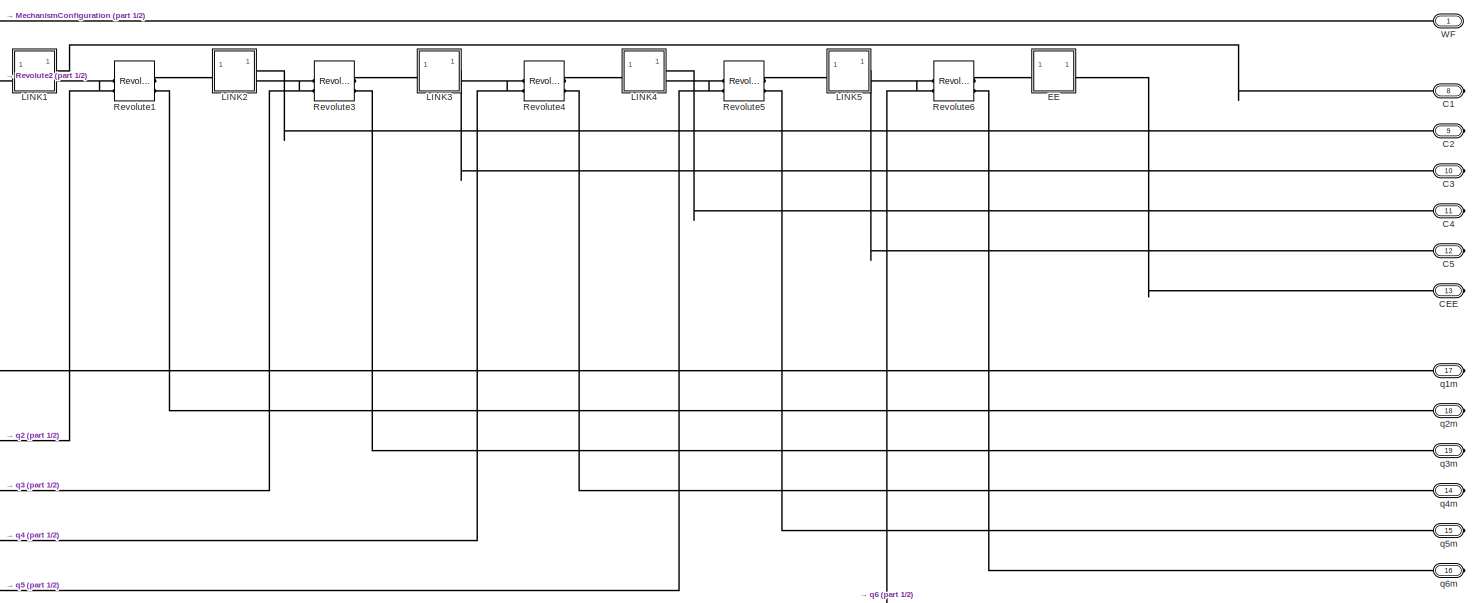
[diagram: Collisional Model/UR3e - part 2/2, center side, full height]
BLOCK [SubSystem] Collisional Model/UR3e
BLOCK [SubSystem] Collisional Model/UR3e/BASE
BLOCK [PMIOPort] Collisional Model/UR3e/BASE/F
  Port = 2
  Side = Right
BLOCK [PMIOPort] Collisional Model/UR3e/BASE/F1
  Side = Left
BLOCK [Reference] Collisional Model/UR3e/BASE/ReferenceFrame  REF=sm_lib/Frames and
Transforms/Reference
Frame
  SourceBlock = sm_lib/Frames and\nTransforms/Reference\nFrame
  SourceType = Reference\nFrame
BLOCK [Reference] Collisional Model/UR3e/BASE/Solid  REF=sm_lib/Body Elements/File Solid
  SourceBlock = sm_lib/Body Elements/File Solid
  SourceType = File Solid
BLOCK [Reference] Collisional Model/UR3e/BASE/Transform  REF=sm_lib/Frames and
Transforms/Rigid
Transform
  SourceBlock = sm_lib/Frames and\nTransforms/Rigid\nTransform
  SourceType = Rigid\nTransform
BLOCK [PMIOPort] Collisional Model/UR3e/C1
  Port = 8
  Side = Right
BLOCK [PMIOPort] Collisional Model/UR3e/C2
  Port = 9
  Side = Right
BLOCK [PMIOPort] Collisional Model/UR3e/C3
  Port = 10
  Side = Right
BLOCK [PMIOPort] Collisional Model/UR3e/C4
  Port = 11
  Side = Right
BLOCK [PMIOPort] Collisional Model/UR3e/C5
  Port = 12
  Side = Right
BLOCK [PMIOPort] Collisional Model/UR3e/CEE
  Port = 13
  Side = Right
BLOCK [SubSystem] Collisional Model/UR3e/EE
BLOCK [PMIOPort] Collisional Model/UR3e/EE/CH
  Port = 2
  Side = Right
BLOCK [PMIOPort] Collisional Model/UR3e/EE/F
  Side = Left
BLOCK [Reference] Collisional Model/UR3e/EE/ReferenceFrame  REF=sm_lib/Frames and
Transforms/Reference
Frame
  SourceBlock = sm_lib/Frames and\nTransforms/Reference\nFrame
  SourceType = Reference\nFrame
BLOCK [Reference] Collisional Model/UR3e/EE/Solid  REF=sm_lib/Body Elements/File Solid
  SourceBlock = sm_lib/Body Elements/File Solid
  SourceType = File Solid
BLOCK [Reference] Collisional Model/UR3e/EE/Transform  REF=sm_lib/Frames and
Transforms/Rigid
Transform
  SourceBlock = sm_lib/Frames and\nTransforms/Rigid\nTransform
  SourceType = Rigid\nTransform
BLOCK [SubSystem] Collisional Model/UR3e/LINK1
BLOCK [PMIOPort] Collisional Model/UR3e/LINK1/CH
  Port = 2
  Side = Right
BLOCK [PMIOPort] Collisional Model/UR3e/LINK1/F
  Side = Left
BLOCK [PMIOPort] Collisional Model/UR3e/LINK1/F1
  Port = 3
  Side = Right
BLOCK [Reference] Collisional Model/UR3e/LINK1/ReferenceFrame  REF=sm_lib/Frames and
Transforms/Reference
Frame
  SourceBlock = sm_lib/Frames and\nTransforms/Reference\nFrame
  SourceType = Reference\nFrame
BLOCK [Reference] Collisional Model/UR3e/LINK1/Solid  REF=sm_lib/Body Elements/File Solid
  SourceBlock = sm_lib/Body Elements/File Solid
  SourceType = File Solid
BLOCK [Reference] Collisional Model/UR3e/LINK1/Transform  REF=sm_lib/Frames and
Transforms/Rigid
Transform
  SourceBlock = sm_lib/Frames and\nTransforms/Rigid\nTransform
  SourceType = Rigid\nTransform
BLOCK [Reference] Collisional Model/UR3e/LINK1/Transform1  REF=sm_lib/Frames and
Transforms/Rigid
Transform
  SourceBlock = sm_lib/Frames and\nTransforms/Rigid\nTransform
  SourceType = Rigid\nTransform
BLOCK [SubSystem] Collisional Model/UR3e/LINK2
BLOCK [PMIOPort] Collisional Model/UR3e/LINK2/CH
  Port = 2
  Side = Right
BLOCK [PMIOPort] Collisional Model/UR3e/LINK2/F
  Port = 3
  Side = Right
BLOCK [PMIOPort] Collisional Model/UR3e/LINK2/F1
  Side = Left
BLOCK [Reference] Collisional Model/UR3e/LINK2/ReferenceFrame  REF=sm_lib/Frames and
Transforms/Reference
Frame
  SourceBlock = sm_lib/Frames and\nTransforms/Reference\nFrame
  SourceType = Reference\nFrame
BLOCK [Reference] Collisional Model/UR3e/LINK2/Solid  REF=sm_lib/Body Elements/File Solid
  SourceBlock = sm_lib/Body Elements/File Solid
  SourceType = File Solid
BLOCK [Reference] Collisional Model/UR3e/LINK2/Transform  REF=sm_lib/Frames and
Transforms/Rigid
Transform
  SourceBlock = sm_lib/Frames and\nTransforms/Rigid\nTransform
  SourceType = Rigid\nTransform
BLOCK [Reference] Collisional Model/UR3e/LINK2/Transform1  REF=sm_lib/Frames and
Transforms/Rigid
Transform
  SourceBlock = sm_lib/Frames and\nTransforms/Rigid\nTransform
  SourceType = Rigid\nTransform
BLOCK [SubSystem] Collisional Model/UR3e/LINK3
BLOCK [PMIOPort] Collisional Model/UR3e/LINK3/CH
  Port = 2
  Side = Right
BLOCK [PMIOPort] Collisional Model/UR3e/LINK3/F
  Side = Left
BLOCK [PMIOPort] Collisional Model/UR3e/LINK3/F1
  Port = 3
  Side = Right
BLOCK [Reference] Collisional Model/UR3e/LINK3/ReferenceFrame  REF=sm_lib/Frames and
Transforms/Reference
Frame
  SourceBlock = sm_lib/Frames and\nTransforms/Reference\nFrame
  SourceType = Reference\nFrame
BLOCK [Reference] Collisional Model/UR3e/LINK3/Solid  REF=sm_lib/Body Elements/File Solid
  SourceBlock = sm_lib/Body Elements/File Solid
  SourceType = File Solid
BLOCK [Reference] Collisional Model/UR3e/LINK3/Transform  REF=sm_lib/Frames and
Transforms/Rigid
Transform
  SourceBlock = sm_lib/Frames and\nTransforms/Rigid\nTransform
  SourceType = Rigid\nTransform
BLOCK [Reference] Collisional Model/UR3e/LINK3/Transform1  REF=sm_lib/Frames and
Transforms/Rigid
Transform
  SourceBlock = sm_lib/Frames and\nTransforms/Rigid\nTransform
  SourceType = Rigid\nTransform
BLOCK [SubSystem] Collisional Model/UR3e/LINK4
BLOCK [PMIOPort] Collisional Model/UR3e/LINK4/CH
  Port = 2
  Side = Right
BLOCK [PMIOPort] Collisional Model/UR3e/LINK4/F
  Side = Left
BLOCK [PMIOPort] Collisional Model/UR3e/LINK4/F1
  Port = 3
  Side = Right
BLOCK [Reference] Collisional Model/UR3e/LINK4/ReferenceFrame  REF=sm_lib/Frames and
Transforms/Reference
Frame
  SourceBlock = sm_lib/Frames and\nTransforms/Reference\nFrame
  SourceType = Reference\nFrame
BLOCK [Reference] Collisional Model/UR3e/LINK4/Solid  REF=sm_lib/Body Elements/File Solid
  SourceBlock = sm_lib/Body Elements/File Solid
  SourceType = File Solid
BLOCK [Reference] Collisional Model/UR3e/LINK4/Transform  REF=sm_lib/Frames and
Transforms/Rigid
Transform
  SourceBlock = sm_lib/Frames and\nTransforms/Rigid\nTransform
  SourceType = Rigid\nTransform
BLOCK [Reference] Collisional Model/UR3e/LINK4/Transform1  REF=sm_lib/Frames and
Transforms/Rigid
Transform
  SourceBlock = sm_lib/Frames and\nTransforms/Rigid\nTransform
  SourceType = Rigid\nTransform
BLOCK [SubSystem] Collisional Model/UR3e/LINK5
BLOCK [PMIOPort] Collisional Model/UR3e/LINK5/CH
  Port = 2
  Side = Right
BLOCK [PMIOPort] Collisional Model/UR3e/LINK5/F
  Port = 3
  Side = Right
BLOCK [PMIOPort] Collisional Model/UR3e/LINK5/F1
  Side = Left
BLOCK [Reference] Collisional Model/UR3e/LINK5/ReferenceFrame  REF=sm_lib/Frames and
Transforms/Reference
Frame
  SourceBlock = sm_lib/Frames and\nTransforms/Reference\nFrame
  SourceType = Reference\nFrame
BLOCK [Reference] Collisional Model/UR3e/LINK5/Solid  REF=sm_lib/Body Elements/File Solid
  SourceBlock = sm_lib/Body Elements/File Solid
  SourceType = File Solid
BLOCK [Reference] Collisional Model/UR3e/LINK5/Transform  REF=sm_lib/Frames and
Transforms/Rigid
Transform
  SourceBlock = sm_lib/Frames and\nTransforms/Rigid\nTransform
  SourceType = Rigid\nTransform
BLOCK [Reference] Collisional Model/UR3e/LINK5/Transform1  REF=sm_lib/Frames and
Transforms/Rigid
Transform
  SourceBlock = sm_lib/Frames and\nTransforms/Rigid\nTransform
  SourceType = Rigid\nTransform
BLOCK [Reference] Collisional Model/UR3e/MechanismConfiguration  REF=sm_lib/Utilities/Mechanism
Configuration
  SourceBlock = sm_lib/Utilities/Mechanism\nConfiguration
  SourceType = Mechanism\nConfiguration
BLOCK [Reference] Collisional Model/UR3e/Revolute1  REF=sm_lib/Joints/Revolute Joint
  SourceBlock = sm_lib/Joints/Revolute Joint
  SourceType = Revolute Joint
BLOCK [Reference] Collisional Model/UR3e/Revolute2  REF=sm_lib/Joints/Revolute Joint
  SourceBlock = sm_lib/Joints/Revolute Joint
  SourceType = Revolute Joint
BLOCK [Reference] Collisional Model/UR3e/Revolute3  REF=sm_lib/Joints/Revolute Joint
  SourceBlock = sm_lib/Joints/Revolute Joint
  SourceType = Revolute Joint
BLOCK [Reference] Collisional Model/UR3e/Revolute4  REF=sm_lib/Joints/Revolute Joint
  SourceBlock = sm_lib/Joints/Revolute Joint
  SourceType = Revolute Joint
BLOCK [Reference] Collisional Model/UR3e/Revolute5  REF=sm_lib/Joints/Revolute Joint
  SourceBlock = sm_lib/Joints/Revolute Joint
  SourceType = Revolute Joint
BLOCK [Reference] Collisional Model/UR3e/Revolute6  REF=sm_lib/Joints/Revolute Joint
  SourceBlock = sm_lib/Joints/Revolute Joint
  SourceType = Revolute Joint
BLOCK [Reference] Collisional Model/UR3e/Solver Configuration  REF=nesl_utility/Solver
Configuration
  SourceBlock = nesl_utility/Solver\nConfiguration
  SourceType = Solver\nConfiguration
BLOCK [Reference] Collisional Model/UR3e/Transform  REF=sm_lib/Frames and
Transforms/Rigid
Transform
  SourceBlock = sm_lib/Frames and\nTransforms/Rigid\nTransform
  SourceType = Rigid\nTransform
BLOCK [PMIOPort] Collisional Model/UR3e/WF
  Side = Left
BLOCK [Reference] Collisional Model/UR3e/World  REF=sm_lib/Frames and
Transforms/World Frame
  SourceBlock = sm_lib/Frames and\nTransforms/World Frame
  SourceType = World Frame
BLOCK [PMIOPort] Collisional Model/UR3e/q1
  Port = 2
  Side = Left
BLOCK [PMIOPort] Collisional Model/UR3e/q1m
  Port = 17
  Side = Right
BLOCK [PMIOPort] Collisional Model/UR3e/q2
  Port = 3
  Side = Left
BLOCK [PMIOPort] Collisional Model/UR3e/q2m
  Port = 18
  Side = Right
BLOCK [PMIOPort] Collisional Model/UR3e/q3
  Port = 4
  Side = Left
BLOCK [PMIOPort] Collisional Model/UR3e/q3m
  Port = 19
  Side = Right
BLOCK [PMIOPort] Collisional Model/UR3e/q4
  Port = 5
  Side = Left
BLOCK [PMIOPort] Collisional Model/UR3e/q4m
  Port = 14
  Side = Right
BLOCK [PMIOPort] Collisional Model/UR3e/q5
  Port = 6
  Side = Left
BLOCK [PMIOPort] Collisional Model/UR3e/q5m
  Port = 15
  Side = Right
BLOCK [PMIOPort] Collisional Model/UR3e/q6
  Port = 7
  Side = Left
BLOCK [PMIOPort] Collisional Model/UR3e/q6m
  Port = 16
  Side = Right
BLOCK [Inport] Collisional Model/q1
BLOCK [Outport] Collisional Model/q1m
BLOCK [Inport] Collisional Model/q2
  Port = 2
BLOCK [Outport] Collisional Model/q2m
  Port = 2
BLOCK [Inport] Collisional Model/q3
  Port = 3
BLOCK [Outport] Collisional Model/q3m
  Port = 3
BLOCK [Inport] Collisional Model/q4
  Port = 4
BLOCK [Outport] Collisional Model/q4m
  Port = 4
BLOCK [Inport] Collisional Model/q5
  Port = 5
BLOCK [Outport] Collisional Model/q5m
  Port = 5
BLOCK [Inport] Collisional Model/q6
  Port = 6
BLOCK [Outport] Collisional Model/q6m
  Port = 6
BLOCK [SubSystem] Forward Kinematics
BLOCK [Inport] Forward Kinematics/Config
BLOCK [Reference] Forward Kinematics/Coordinate Transformation Conversion  REF=robotcorelib/Coordinate Transformation Conversion
  LibrarySourceBlock = robotutilslib/Coordinate Transformation Conversion
  SourceBlock = robotcorelib/Coordinate Transformation Conversion
  SourceType = robotics.slcore.internal.block.CoordinateTransformationConversion
BLOCK [Outport] Forward Kinematics/End Effector Position
BLOCK [Reference] Forward Kinematics/Get Transform  REF=robotmaniplib/Get Transform
  SourceBlock = robotmaniplib/Get Transform
  SourceType = Get Transform
BLOCK [Mux] Mux
  DisplayOption = bar
  Inputs = 6
BLOCK [SubSystem] Register legal pos
BLOCK [Clock] Register legal pos/Clock
BLOCK [Inport] Register legal pos/End Effector Position
BLOCK [If] Register legal pos/If
  IfExpression = u1 == 0
  ShowElse = off
BLOCK [SubSystem] Register legal pos/Legal Position Registration
  TreatAsAtomicUnit = on
BLOCK [ActionPort] Register legal pos/Legal Position Registration/Action Port
  ActionPortLabel = if(u1 == 0)
BLOCK [Inport] Register legal pos/Legal Position Registration/EE_Pos
BLOCK [Inport] Register legal pos/Legal Position Registration/SimTime
  Port = 2
BLOCK [ToFile] Register legal pos/Legal Position Registration/To File
  Filename = simout.mat
  MatrixName = legal_positions
BLOCK [ToFile] Register legal pos/Legal Position Registration/To File1
  Commented = on
  Filename = simout.mat
  MatrixName = leg_time
  SaveFormat = Timeseries
BLOCK [Inport] Register legal pos/NoCol
  Port = 2
ANNOTATION Angle Randomizer: This is EE so we do not need to change it
ANNOTATION Collisional Model/Self Collision: C3 Should connect to EE
LINE Angle Randomizer/Constant:1 -> Angle Randomizer/Out6:1
LINE Angle Randomizer/Uniform Random Number1:1 -> Angle Randomizer/Out2:1
LINE Angle Randomizer/Uniform Random Number2:1 -> Angle Randomizer/Out3:1
LINE Angle Randomizer/Uniform Random Number3:1 -> Angle Randomizer/Out4:1
LINE Angle Randomizer/Uniform Random Number4:1 -> Angle Randomizer/Out5:1
LINE Angle Randomizer/Uniform Random Number:1 -> Angle Randomizer/Out1:1
LINE Angle Randomizer:1 -> Collisional Model:1
LINE Angle Randomizer:2 -> Collisional Model:2
LINE Angle Randomizer:3 -> Collisional Model:3
LINE Angle Randomizer:4 -> Collisional Model:4
LINE Angle Randomizer:5 -> Collisional Model:5
LINE Angle Randomizer:6 -> Collisional Model:6
LINE Collisional Model/GB_Collision_Box/Back/Mux1:1 -> Collisional Model/GB_Collision_Box/Back/Col:1
LINE Collisional Model/GB_Collision_Box/Back/PS-Simulink Converter16:1 -> Collisional Model/GB_Collision_Box/Back/Mux1:1
LINE Collisional Model/GB_Collision_Box/Back/PS-Simulink Converter1:1 -> Collisional Model/GB_Collision_Box/Back/Mux1:2
LINE Collisional Model/GB_Collision_Box/Back/PS-Simulink Converter2:1 -> Collisional Model/GB_Collision_Box/Back/Mux1:3
LINE Collisional Model/GB_Collision_Box/Back/PS-Simulink Converter3:1 -> Collisional Model/GB_Collision_Box/Back/Mux1:4
LINE Collisional Model/GB_Collision_Box/Back/PS-Simulink Converter4:1 -> Collisional Model/GB_Collision_Box/Back/Mux1:5
LINE Collisional Model/GB_Collision_Box/Back:1 -> Collisional Model/GB_Collision_Box/Mux:1
LINE Collisional Model/GB_Collision_Box/Bottom/Mux1:1 -> Collisional Model/GB_Collision_Box/Bottom/Col:1
LINE Collisional Model/GB_Collision_Box/Bottom/PS-Simulink Converter16:1 -> Collisional Model/GB_Collision_Box/Bottom/Mux1:1
LINE Collisional Model/GB_Collision_Box/Bottom/PS-Simulink Converter1:1 -> Collisional Model/GB_Collision_Box/Bottom/Mux1:2
LINE Collisional Model/GB_Collision_Box/Bottom/PS-Simulink Converter2:1 -> Collisional Model/GB_Collision_Box/Bottom/Mux1:3
LINE Collisional Model/GB_Collision_Box/Bottom/PS-Simulink Converter3:1 -> Collisional Model/GB_Collision_Box/Bottom/Mux1:4
LINE Collisional Model/GB_Collision_Box/Bottom/PS-Simulink Converter4:1 -> Collisional Model/GB_Collision_Box/Bottom/Mux1:5
LINE Collisional Model/GB_Collision_Box/Bottom:1 -> Collisional Model/GB_Collision_Box/Mux:6
LINE Collisional Model/GB_Collision_Box/Front/Mux1:1 -> Collisional Model/GB_Collision_Box/Front/Col:1
LINE Collisional Model/GB_Collision_Box/Front/PS-Simulink Converter16:1 -> Collisional Model/GB_Collision_Box/Front/Mux1:1
LINE Collisional Model/GB_Collision_Box/Front/PS-Simulink Converter1:1 -> Collisional Model/GB_Collision_Box/Front/Mux1:2
LINE Collisional Model/GB_Collision_Box/Front/PS-Simulink Converter2:1 -> Collisional Model/GB_Collision_Box/Front/Mux1:3
LINE Collisional Model/GB_Collision_Box/Front/PS-Simulink Converter3:1 -> Collisional Model/GB_Collision_Box/Front/Mux1:4
LINE Collisional Model/GB_Collision_Box/Front/PS-Simulink Converter4:1 -> Collisional Model/GB_Collision_Box/Front/Mux1:5
LINE Collisional Model/GB_Collision_Box/Front:1 -> Collisional Model/GB_Collision_Box/Mux:2
LINE Collisional Model/GB_Collision_Box/Left/Mux1:1 -> Collisional Model/GB_Collision_Box/Left/Col:1
LINE Collisional Model/GB_Collision_Box/Left/PS-Simulink Converter16:1 -> Collisional Model/GB_Collision_Box/Left/Mux1:1
LINE Collisional Model/GB_Collision_Box/Left/PS-Simulink Converter1:1 -> Collisional Model/GB_Collision_Box/Left/Mux1:2
LINE Collisional Model/GB_Collision_Box/Left/PS-Simulink Converter2:1 -> Collisional Model/GB_Collision_Box/Left/Mux1:3
LINE Collisional Model/GB_Collision_Box/Left/PS-Simulink Converter3:1 -> Collisional Model/GB_Collision_Box/Left/Mux1:4
LINE Collisional Model/GB_Collision_Box/Left/PS-Simulink Converter4:1 -> Collisional Model/GB_Collision_Box/Left/Mux1:5
LINE Collisional Model/GB_Collision_Box/Left:1 -> Collisional Model/GB_Collision_Box/Mux:4
LINE Collisional Model/GB_Collision_Box/Mux:1 -> Collisional Model/GB_Collision_Box/ColData:1
LINE Collisional Model/GB_Collision_Box/Right/Mux1:1 -> Collisional Model/GB_Collision_Box/Right/Col:1
LINE Collisional Model/GB_Collision_Box/Right/PS-Simulink Converter16:1 -> Collisional Model/GB_Collision_Box/Right/Mux1:1
LINE Collisional Model/GB_Collision_Box/Right/PS-Simulink Converter1:1 -> Collisional Model/GB_Collision_Box/Right/Mux1:2
LINE Collisional Model/GB_Collision_Box/Right/PS-Simulink Converter2:1 -> Collisional Model/GB_Collision_Box/Right/Mux1:3
LINE Collisional Model/GB_Collision_Box/Right/PS-Simulink Converter3:1 -> Collisional Model/GB_Collision_Box/Right/Mux1:4
LINE Collisional Model/GB_Collision_Box/Right/PS-Simulink Converter4:1 -> Collisional Model/GB_Collision_Box/Right/Mux1:5
LINE Collisional Model/GB_Collision_Box/Right:1 -> Collisional Model/GB_Collision_Box/Mux:3
LINE Collisional Model/GB_Collision_Box/Top/Mux1:1 -> Collisional Model/GB_Collision_Box/Top/Col:1
LINE Collisional Model/GB_Collision_Box/Top/PS-Simulink Converter16:1 -> Collisional Model/GB_Collision_Box/Top/Mux1:1
LINE Collisional Model/GB_Collision_Box/Top/PS-Simulink Converter1:1 -> Collisional Model/GB_Collision_Box/Top/Mux1:2
LINE Collisional Model/GB_Collision_Box/Top/PS-Simulink Converter2:1 -> Collisional Model/GB_Collision_Box/Top/Mux1:3
LINE Collisional Model/GB_Collision_Box/Top/PS-Simulink Converter3:1 -> Collisional Model/GB_Collision_Box/Top/Mux1:4
LINE Collisional Model/GB_Collision_Box/Top/PS-Simulink Converter4:1 -> Collisional Model/GB_Collision_Box/Top/Mux1:5
LINE Collisional Model/GB_Collision_Box/Top:1 -> Collisional Model/GB_Collision_Box/Mux:5
LINE Collisional Model/GB_Collision_Box:1 -> Collisional Model/Sum:1
LINE Collisional Model/PS-Simulink Converter1:1 -> Collisional Model/q2m:1
LINE Collisional Model/PS-Simulink Converter2:1 -> Collisional Model/q3m:1
LINE Collisional Model/PS-Simulink Converter3:1 -> Collisional Model/q4m:1
LINE Collisional Model/PS-Simulink Converter4:1 -> Collisional Model/q5m:1
LINE Collisional Model/PS-Simulink Converter5:1 -> Collisional Model/q6m:1
LINE Collisional Model/PS-Simulink Converter:1 -> Collisional Model/q1m:1
LINE Collisional Model/Self Collision/Mux:1 -> Collisional Model/Self Collision/ColData:1
LINE Collisional Model/Self Collision/PS-Simulink Converter10:1 -> Collisional Model/Self Collision/Mux:6
LINE Collisional Model/Self Collision/PS-Simulink Converter11:1 -> Collisional Model/Self Collision/Mux:7
LINE Collisional Model/Self Collision/PS-Simulink Converter6:1 -> Collisional Model/Self Collision/Mux:2
LINE Collisional Model/Self Collision/PS-Simulink Converter7:1 -> Collisional Model/Self Collision/Mux:3
LINE Collisional Model/Self Collision/PS-Simulink Converter8:1 -> Collisional Model/Self Collision/Mux:4
LINE Collisional Model/Self Collision/PS-Simulink Converter9:1 -> Collisional Model/Self Collision/Mux:5
LINE Collisional Model/Self Collision:1 -> Collisional Model/Sum2:1
LINE Collisional Model/Sum1:1 -> Collisional Model/NoCol:1
LINE Collisional Model/Sum2:1 -> Collisional Model/Sum1:2
LINE Collisional Model/Sum:1 -> Collisional Model/Sum1:1
LINE Collisional Model/q1:1 -> Collisional Model/Simulink-PS Converter:1
LINE Collisional Model/q2:1 -> Collisional Model/Simulink-PS Converter1:1
LINE Collisional Model/q3:1 -> Collisional Model/Simulink-PS Converter2:1
LINE Collisional Model/q4:1 -> Collisional Model/Simulink-PS Converter3:1
LINE Collisional Model/q5:1 -> Collisional Model/Simulink-PS Converter4:1
LINE Collisional Model/q6:1 -> Collisional Model/Simulink-PS Converter5:1
LINE Collisional Model:1 -> Mux:1
LINE Collisional Model:2 -> Mux:2
LINE Collisional Model:3 -> Mux:3
LINE Collisional Model:4 -> Mux:4
LINE Collisional Model:5 -> Mux:5
LINE Collisional Model:6 -> Mux:6
LINE Collisional Model:7 -> Register legal pos:2
LINE Forward Kinematics/Config:1 -> Forward Kinematics/Get Transform:1
LINE Forward Kinematics/Coordinate Transformation Conversion:1 -> Forward Kinematics/End Effector Position:1
LINE Forward Kinematics/Get Transform:1 -> Forward Kinematics/Coordinate Transformation Conversion:1
LINE Forward Kinematics:1 -> Register legal pos:1
LINE Mux:1 -> Forward Kinematics:1
LINE Register legal pos/Clock:1 -> Register legal pos/Legal Position Registration:2
LINE Register legal pos/End Effector Position:1 -> Register legal pos/Legal Position Registration:1
LINE Register legal pos/If:1 -> Register legal pos/Legal Position Registration:ifaction
LINE Register legal pos/Legal Position Registration/EE_Pos:1 -> Register legal pos/Legal Position Registration/To File:1
LINE Register legal pos/Legal Position Registration/SimTime:1 -> Register legal pos/Legal Position Registration/To File1:1
LINE Register legal pos/NoCol:1 -> Register legal pos/If:1
PNET net1: Collisional Model/GB_Collision_Box/Back/Body:LConn1 -- Collisional Model/GB_Collision_Box/Back/Spatial Contact Force10:LConn1 -- Collisional Model/GB_Collision_Box/Back/Spatial Contact Force6:LConn1 -- Collisional Model/GB_Collision_Box/Back/Spatial Contact Force7:LConn1 -- Collisional Model/GB_Collision_Box/Back/Spatial Contact Force8:LConn1 -- Collisional Model/GB_Collision_Box/Back/Spatial Contact Force9:LConn1
PLINE Collisional Model/GB_Collision_Box/Back/Body:RConn1 -- Collisional Model/GB_Collision_Box/Back/WR:RConn1
PLINE Collisional Model/GB_Collision_Box/Back/C1:RConn1 -- Collisional Model/GB_Collision_Box/Back/Spatial Contact Force10:RConn1
PLINE Collisional Model/GB_Collision_Box/Back/C2:RConn1 -- Collisional Model/GB_Collision_Box/Back/Spatial Contact Force6:RConn1
PLINE Collisional Model/GB_Collision_Box/Back/C3:RConn1 -- Collisional Model/GB_Collision_Box/Back/Spatial Contact Force7:RConn1
PLINE Collisional Model/GB_Collision_Box/Back/C4:RConn1 -- Collisional Model/GB_Collision_Box/Back/Spatial Contact Force8:RConn1
PLINE Collisional Model/GB_Collision_Box/Back/C5:RConn1 -- Collisional Model/GB_Collision_Box/Back/Spatial Contact Force9:RConn1
PLINE Collisional Model/GB_Collision_Box/Back/PS-Simulink Converter16:LConn1 -- Collisional Model/GB_Collision_Box/Back/Spatial Contact Force10:RConn2
PLINE Collisional Model/GB_Collision_Box/Back/PS-Simulink Converter1:LConn1 -- Collisional Model/GB_Collision_Box/Back/Spatial Contact Force6:RConn2
PLINE Collisional Model/GB_Collision_Box/Back/PS-Simulink Converter2:LConn1 -- Collisional Model/GB_Collision_Box/Back/Spatial Contact Force7:RConn2
PLINE Collisional Model/GB_Collision_Box/Back/PS-Simulink Converter3:LConn1 -- Collisional Model/GB_Collision_Box/Back/Spatial Contact Force8:RConn2
PLINE Collisional Model/GB_Collision_Box/Back/PS-Simulink Converter4:LConn1 -- Collisional Model/GB_Collision_Box/Back/Spatial Contact Force9:RConn2
PNET net2: Collisional Model/GB_Collision_Box/Back:LConn1 -- Collisional Model/GB_Collision_Box/Bottom:LConn1 -- Collisional Model/GB_Collision_Box/C1:RConn1 -- Collisional Model/GB_Collision_Box/Front:LConn1 -- Collisional Model/GB_Collision_Box/Left:LConn1 -- Collisional Model/GB_Collision_Box/Right:LConn1 -- Collisional Model/GB_Collision_Box/Top:LConn1
PNET net3: Collisional Model/GB_Collision_Box/Back:LConn2 -- Collisional Model/GB_Collision_Box/Bottom:LConn2 -- Collisional Model/GB_Collision_Box/C2:RConn1 -- Collisional Model/GB_Collision_Box/Front:LConn2 -- Collisional Model/GB_Collision_Box/Left:LConn2 -- Collisional Model/GB_Collision_Box/Right:LConn2 -- Collisional Model/GB_Collision_Box/Top:LConn2
PNET net4: Collisional Model/GB_Collision_Box/Back:LConn3 -- Collisional Model/GB_Collision_Box/Bottom:LConn3 -- Collisional Model/GB_Collision_Box/C3:RConn1 -- Collisional Model/GB_Collision_Box/Front:LConn3 -- Collisional Model/GB_Collision_Box/Left:LConn3 -- Collisional Model/GB_Collision_Box/Right:LConn3 -- Collisional Model/GB_Collision_Box/Top:LConn3
PNET net5: Collisional Model/GB_Collision_Box/Back:LConn4 -- Collisional Model/GB_Collision_Box/Bottom:LConn4 -- Collisional Model/GB_Collision_Box/C4:RConn1 -- Collisional Model/GB_Collision_Box/Front:LConn4 -- Collisional Model/GB_Collision_Box/Left:LConn4 -- Collisional Model/GB_Collision_Box/Right:LConn4 -- Collisional Model/GB_Collision_Box/Top:LConn4
PNET net6: Collisional Model/GB_Collision_Box/Back:LConn5 -- Collisional Model/GB_Collision_Box/Bottom:LConn5 -- Collisional Model/GB_Collision_Box/C5:RConn1 -- Collisional Model/GB_Collision_Box/Front:LConn5 -- Collisional Model/GB_Collision_Box/Left:LConn5 -- Collisional Model/GB_Collision_Box/Right:LConn5 -- Collisional Model/GB_Collision_Box/Top:LConn5
PNET net7: Collisional Model/GB_Collision_Box/Back:RConn1 -- Collisional Model/GB_Collision_Box/Bottom:RConn1 -- Collisional Model/GB_Collision_Box/Front:RConn1 -- Collisional Model/GB_Collision_Box/Left:RConn1 -- Collisional Model/GB_Collision_Box/Right:RConn1 -- Collisional Model/GB_Collision_Box/Top:RConn1 -- Collisional Model/GB_Collision_Box/WR:RConn1
PNET net8: Collisional Model/GB_Collision_Box/Bottom/Body:LConn1 -- Collisional Model/GB_Collision_Box/Bottom/Spatial Contact Force10:LConn1 -- Collisional Model/GB_Collision_Box/Bottom/Spatial Contact Force6:LConn1 -- Collisional Model/GB_Collision_Box/Bottom/Spatial Contact Force7:LConn1 -- Collisional Model/GB_Collision_Box/Bottom/Spatial Contact Force8:LConn1 -- Collisional Model/GB_Collision_Box/Bottom/Spatial Contact Force9:LConn1
PLINE Collisional Model/GB_Collision_Box/Bottom/Body:RConn1 -- Collisional Model/GB_Collision_Box/Bottom/WR:RConn1
PLINE Collisional Model/GB_Collision_Box/Bottom/C1:RConn1 -- Collisional Model/GB_Collision_Box/Bottom/Spatial Contact Force10:RConn1
PLINE Collisional Model/GB_Collision_Box/Bottom/C2:RConn1 -- Collisional Model/GB_Collision_Box/Bottom/Spatial Contact Force6:RConn1
PLINE Collisional Model/GB_Collision_Box/Bottom/C3:RConn1 -- Collisional Model/GB_Collision_Box/Bottom/Spatial Contact Force7:RConn1
PLINE Collisional Model/GB_Collision_Box/Bottom/C4:RConn1 -- Collisional Model/GB_Collision_Box/Bottom/Spatial Contact Force8:RConn1
PLINE Collisional Model/GB_Collision_Box/Bottom/C5:RConn1 -- Collisional Model/GB_Collision_Box/Bottom/Spatial Contact Force9:RConn1
PLINE Collisional Model/GB_Collision_Box/Bottom/PS-Simulink Converter16:LConn1 -- Collisional Model/GB_Collision_Box/Bottom/Spatial Contact Force10:RConn2
PLINE Collisional Model/GB_Collision_Box/Bottom/PS-Simulink Converter1:LConn1 -- Collisional Model/GB_Collision_Box/Bottom/Spatial Contact Force6:RConn2
PLINE Collisional Model/GB_Collision_Box/Bottom/PS-Simulink Converter2:LConn1 -- Collisional Model/GB_Collision_Box/Bottom/Spatial Contact Force7:RConn2
PLINE Collisional Model/GB_Collision_Box/Bottom/PS-Simulink Converter3:LConn1 -- Collisional Model/GB_Collision_Box/Bottom/Spatial Contact Force8:RConn2
PLINE Collisional Model/GB_Collision_Box/Bottom/PS-Simulink Converter4:LConn1 -- Collisional Model/GB_Collision_Box/Bottom/Spatial Contact Force9:RConn2
PNET net9: Collisional Model/GB_Collision_Box/Front/Body:LConn1 -- Collisional Model/GB_Collision_Box/Front/Spatial Contact Force10:LConn1 -- Collisional Model/GB_Collision_Box/Front/Spatial Contact Force6:LConn1 -- Collisional Model/GB_Collision_Box/Front/Spatial Contact Force7:LConn1 -- Collisional Model/GB_Collision_Box/Front/Spatial Contact Force8:LConn1 -- Collisional Model/GB_Collision_Box/Front/Spatial Contact Force9:LConn1
PLINE Collisional Model/GB_Collision_Box/Front/Body:RConn1 -- Collisional Model/GB_Collision_Box/Front/WR:RConn1
PLINE Collisional Model/GB_Collision_Box/Front/C1:RConn1 -- Collisional Model/GB_Collision_Box/Front/Spatial Contact Force10:RConn1
PLINE Collisional Model/GB_Collision_Box/Front/C2:RConn1 -- Collisional Model/GB_Collision_Box/Front/Spatial Contact Force6:RConn1
PLINE Collisional Model/GB_Collision_Box/Front/C3:RConn1 -- Collisional Model/GB_Collision_Box/Front/Spatial Contact Force7:RConn1
PLINE Collisional Model/GB_Collision_Box/Front/C4:RConn1 -- Collisional Model/GB_Collision_Box/Front/Spatial Contact Force8:RConn1
PLINE Collisional Model/GB_Collision_Box/Front/C5:RConn1 -- Collisional Model/GB_Collision_Box/Front/Spatial Contact Force9:RConn1
PLINE Collisional Model/GB_Collision_Box/Front/PS-Simulink Converter16:LConn1 -- Collisional Model/GB_Collision_Box/Front/Spatial Contact Force10:RConn2
PLINE Collisional Model/GB_Collision_Box/Front/PS-Simulink Converter1:LConn1 -- Collisional Model/GB_Collision_Box/Front/Spatial Contact Force6:RConn2
PLINE Collisional Model/GB_Collision_Box/Front/PS-Simulink Converter2:LConn1 -- Collisional Model/GB_Collision_Box/Front/Spatial Contact Force7:RConn2
PLINE Collisional Model/GB_Collision_Box/Front/PS-Simulink Converter3:LConn1 -- Collisional Model/GB_Collision_Box/Front/Spatial Contact Force8:RConn2
PLINE Collisional Model/GB_Collision_Box/Front/PS-Simulink Converter4:LConn1 -- Collisional Model/GB_Collision_Box/Front/Spatial Contact Force9:RConn2
PNET net10: Collisional Model/GB_Collision_Box/Left/Body:LConn1 -- Collisional Model/GB_Collision_Box/Left/Spatial Contact Force10:LConn1 -- Collisional Model/GB_Collision_Box/Left/Spatial Contact Force6:LConn1 -- Collisional Model/GB_Collision_Box/Left/Spatial Contact Force7:LConn1 -- Collisional Model/GB_Collision_Box/Left/Spatial Contact Force8:LConn1 -- Collisional Model/GB_Collision_Box/Left/Spatial Contact Force9:LConn1
PLINE Collisional Model/GB_Collision_Box/Left/Body:RConn1 -- Collisional Model/GB_Collision_Box/Left/WR:RConn1
PLINE Collisional Model/GB_Collision_Box/Left/C1:RConn1 -- Collisional Model/GB_Collision_Box/Left/Spatial Contact Force10:RConn1
PLINE Collisional Model/GB_Collision_Box/Left/C2:RConn1 -- Collisional Model/GB_Collision_Box/Left/Spatial Contact Force6:RConn1
PLINE Collisional Model/GB_Collision_Box/Left/C3:RConn1 -- Collisional Model/GB_Collision_Box/Left/Spatial Contact Force7:RConn1
PLINE Collisional Model/GB_Collision_Box/Left/C4:RConn1 -- Collisional Model/GB_Collision_Box/Left/Spatial Contact Force8:RConn1
PLINE Collisional Model/GB_Collision_Box/Left/C5:RConn1 -- Collisional Model/GB_Collision_Box/Left/Spatial Contact Force9:RConn1
PLINE Collisional Model/GB_Collision_Box/Left/PS-Simulink Converter16:LConn1 -- Collisional Model/GB_Collision_Box/Left/Spatial Contact Force10:RConn2
PLINE Collisional Model/GB_Collision_Box/Left/PS-Simulink Converter1:LConn1 -- Collisional Model/GB_Collision_Box/Left/Spatial Contact Force6:RConn2
PLINE Collisional Model/GB_Collision_Box/Left/PS-Simulink Converter2:LConn1 -- Collisional Model/GB_Collision_Box/Left/Spatial Contact Force7:RConn2
PLINE Collisional Model/GB_Collision_Box/Left/PS-Simulink Converter3:LConn1 -- Collisional Model/GB_Collision_Box/Left/Spatial Contact Force8:RConn2
PLINE Collisional Model/GB_Collision_Box/Left/PS-Simulink Converter4:LConn1 -- Collisional Model/GB_Collision_Box/Left/Spatial Contact Force9:RConn2
PNET net11: Collisional Model/GB_Collision_Box/Right/Body:LConn1 -- Collisional Model/GB_Collision_Box/Right/Spatial Contact Force10:LConn1 -- Collisional Model/GB_Collision_Box/Right/Spatial Contact Force6:LConn1 -- Collisional Model/GB_Collision_Box/Right/Spatial Contact Force7:LConn1 -- Collisional Model/GB_Collision_Box/Right/Spatial Contact Force8:LConn1 -- Collisional Model/GB_Collision_Box/Right/Spatial Contact Force9:LConn1
PLINE Collisional Model/GB_Collision_Box/Right/Body:RConn1 -- Collisional Model/GB_Collision_Box/Right/WR:RConn1
PLINE Collisional Model/GB_Collision_Box/Right/C1:RConn1 -- Collisional Model/GB_Collision_Box/Right/Spatial Contact Force10:RConn1
PLINE Collisional Model/GB_Collision_Box/Right/C2:RConn1 -- Collisional Model/GB_Collision_Box/Right/Spatial Contact Force6:RConn1
PLINE Collisional Model/GB_Collision_Box/Right/C3:RConn1 -- Collisional Model/GB_Collision_Box/Right/Spatial Contact Force7:RConn1
PLINE Collisional Model/GB_Collision_Box/Right/C4:RConn1 -- Collisional Model/GB_Collision_Box/Right/Spatial Contact Force8:RConn1
PLINE Collisional Model/GB_Collision_Box/Right/C5:RConn1 -- Collisional Model/GB_Collision_Box/Right/Spatial Contact Force9:RConn1
PLINE Collisional Model/GB_Collision_Box/Right/PS-Simulink Converter16:LConn1 -- Collisional Model/GB_Collision_Box/Right/Spatial Contact Force10:RConn2
PLINE Collisional Model/GB_Collision_Box/Right/PS-Simulink Converter1:LConn1 -- Collisional Model/GB_Collision_Box/Right/Spatial Contact Force6:RConn2
PLINE Collisional Model/GB_Collision_Box/Right/PS-Simulink Converter2:LConn1 -- Collisional Model/GB_Collision_Box/Right/Spatial Contact Force7:RConn2
PLINE Collisional Model/GB_Collision_Box/Right/PS-Simulink Converter3:LConn1 -- Collisional Model/GB_Collision_Box/Right/Spatial Contact Force8:RConn2
PLINE Collisional Model/GB_Collision_Box/Right/PS-Simulink Converter4:LConn1 -- Collisional Model/GB_Collision_Box/Right/Spatial Contact Force9:RConn2
PNET net12: Collisional Model/GB_Collision_Box/Top/Body:LConn1 -- Collisional Model/GB_Collision_Box/Top/Spatial Contact Force10:LConn1 -- Collisional Model/GB_Collision_Box/Top/Spatial Contact Force6:LConn1 -- Collisional Model/GB_Collision_Box/Top/Spatial Contact Force7:LConn1 -- Collisional Model/GB_Collision_Box/Top/Spatial Contact Force8:LConn1 -- Collisional Model/GB_Collision_Box/Top/Spatial Contact Force9:LConn1
PLINE Collisional Model/GB_Collision_Box/Top/Body:RConn1 -- Collisional Model/GB_Collision_Box/Top/WR:RConn1
PLINE Collisional Model/GB_Collision_Box/Top/C1:RConn1 -- Collisional Model/GB_Collision_Box/Top/Spatial Contact Force10:RConn1
PLINE Collisional Model/GB_Collision_Box/Top/C2:RConn1 -- Collisional Model/GB_Collision_Box/Top/Spatial Contact Force6:RConn1
PLINE Collisional Model/GB_Collision_Box/Top/C3:RConn1 -- Collisional Model/GB_Collision_Box/Top/Spatial Contact Force7:RConn1
PLINE Collisional Model/GB_Collision_Box/Top/C4:RConn1 -- Collisional Model/GB_Collision_Box/Top/Spatial Contact Force8:RConn1
PLINE Collisional Model/GB_Collision_Box/Top/C5:RConn1 -- Collisional Model/GB_Collision_Box/Top/Spatial Contact Force9:RConn1
PLINE Collisional Model/GB_Collision_Box/Top/PS-Simulink Converter16:LConn1 -- Collisional Model/GB_Collision_Box/Top/Spatial Contact Force10:RConn2
PLINE Collisional Model/GB_Collision_Box/Top/PS-Simulink Converter1:LConn1 -- Collisional Model/GB_Collision_Box/Top/Spatial Contact Force6:RConn2
PLINE Collisional Model/GB_Collision_Box/Top/PS-Simulink Converter2:LConn1 -- Collisional Model/GB_Collision_Box/Top/Spatial Contact Force7:RConn2
PLINE Collisional Model/GB_Collision_Box/Top/PS-Simulink Converter3:LConn1 -- Collisional Model/GB_Collision_Box/Top/Spatial Contact Force8:RConn2
PLINE Collisional Model/GB_Collision_Box/Top/PS-Simulink Converter4:LConn1 -- Collisional Model/GB_Collision_Box/Top/Spatial Contact Force9:RConn2
PLINE Collisional Model/GB_Collision_Box:LConn1 -- Collisional Model/UR3e:LConn1
PNET net13: Collisional Model/GB_Collision_Box:RConn1 -- Collisional Model/Self Collision:LConn3 -- Collisional Model/UR3e:RConn2
PNET net14: Collisional Model/GB_Collision_Box:RConn2 -- Collisional Model/Self Collision:LConn1 -- Collisional Model/Self Collision:LConn4 -- Collisional Model/UR3e:RConn3
PNET net15: Collisional Model/GB_Collision_Box:RConn3 -- Collisional Model/Self Collision:LConn6 -- Collisional Model/UR3e:RConn5
PNET net16: Collisional Model/GB_Collision_Box:RConn4 -- Collisional Model/Self Collision:LConn7 -- Collisional Model/UR3e:RConn6
PNET net17: Collisional Model/GB_Collision_Box:RConn5 -- Collisional Model/Self Collision:LConn5 -- Collisional Model/UR3e:RConn4
PLINE Collisional Model/PS-Simulink Converter1:LConn1 -- Collisional Model/UR3e:RConn11
PLINE Collisional Model/PS-Simulink Converter2:LConn1 -- Collisional Model/UR3e:RConn12
PLINE Collisional Model/PS-Simulink Converter3:LConn1 -- Collisional Model/UR3e:RConn7
PLINE Collisional Model/PS-Simulink Converter4:LConn1 -- Collisional Model/UR3e:RConn8
PLINE Collisional Model/PS-Simulink Converter5:LConn1 -- Collisional Model/UR3e:RConn9
PLINE Collisional Model/PS-Simulink Converter:LConn1 -- Collisional Model/UR3e:RConn10
PNET net18: Collisional Model/Self Collision/C1:RConn1 -- Collisional Model/Self Collision/Spatial Contact Force1:LConn1 -- Collisional Model/Self Collision/Spatial Contact Force:LConn1
PNET net19: Collisional Model/Self Collision/C2:RConn1 -- Collisional Model/Self Collision/Spatial Contact Force2:LConn1 -- Collisional Model/Self Collision/Spatial Contact Force3:LConn1 -- Collisional Model/Self Collision/Spatial Contact Force4:LConn1
PLINE Collisional Model/Self Collision/C3:RConn1 -- Collisional Model/Self Collision/Spatial Contact Force:RConn1
PLINE Collisional Model/Self Collision/C4:RConn1 -- Collisional Model/Self Collision/Spatial Contact Force3:RConn1
PLINE Collisional Model/Self Collision/C5:RConn1 -- Collisional Model/Self Collision/Spatial Contact Force2:RConn1
PNET net20: Collisional Model/Self Collision/CEE:RConn1 -- Collisional Model/Self Collision/Spatial Contact Force1:RConn1 -- Collisional Model/Self Collision/Spatial Contact Force4:RConn1 -- Collisional Model/Self Collision/Spatial Contact Force5:RConn1
PLINE Collisional Model/Self Collision/GB:RConn1 -- Collisional Model/Self Collision/Spatial Contact Force5:LConn1
PLINE Collisional Model/Self Collision/PS-Simulink Converter10:LConn1 -- Collisional Model/Self Collision/Spatial Contact Force4:RConn2
PLINE Collisional Model/Self Collision/PS-Simulink Converter11:LConn1 -- Collisional Model/Self Collision/Spatial Contact Force5:RConn2
PLINE Collisional Model/Self Collision/PS-Simulink Converter6:LConn1 -- Collisional Model/Self Collision/Spatial Contact Force:RConn2
PLINE Collisional Model/Self Collision/PS-Simulink Converter7:LConn1 -- Collisional Model/Self Collision/Spatial Contact Force1:RConn2
PLINE Collisional Model/Self Collision/PS-Simulink Converter8:LConn1 -- Collisional Model/Self Collision/Spatial Contact Force2:RConn2
PLINE Collisional Model/Self Collision/PS-Simulink Converter9:LConn1 -- Collisional Model/Self Collision/Spatial Contact Force3:RConn2
PLINE Collisional Model/Self Collision:LConn2 -- Collisional Model/UR3e:RConn1
PLINE Collisional Model/Simulink-PS Converter1:RConn1 -- Collisional Model/UR3e:LConn3
PLINE Collisional Model/Simulink-PS Converter2:RConn1 -- Collisional Model/UR3e:LConn4
PLINE Collisional Model/Simulink-PS Converter3:RConn1 -- Collisional Model/UR3e:LConn5
PLINE Collisional Model/Simulink-PS Converter4:RConn1 -- Collisional Model/UR3e:LConn6
PLINE Collisional Model/Simulink-PS Converter5:RConn1 -- Collisional Model/UR3e:LConn7
PLINE Collisional Model/Simulink-PS Converter:RConn1 -- Collisional Model/UR3e:LConn2
PNET net21: Collisional Model/UR3e/BASE/F1:RConn1 -- Collisional Model/UR3e/BASE/ReferenceFrame:RConn1 -- Collisional Model/UR3e/BASE/Solid:RConn1 -- Collisional Model/UR3e/BASE/Transform:LConn1
PLINE Collisional Model/UR3e/BASE/F:RConn1 -- Collisional Model/UR3e/BASE/Transform:RConn1
PLINE Collisional Model/UR3e/BASE:LConn1 -- Collisional Model/UR3e/Transform:RConn1
PLINE Collisional Model/UR3e/BASE:RConn1 -- Collisional Model/UR3e/Revolute2:LConn1
PLINE Collisional Model/UR3e/C1:RConn1 -- Collisional Model/UR3e/LINK1:RConn1
PLINE Collisional Model/UR3e/C2:RConn1 -- Collisional Model/UR3e/LINK2:RConn1
PLINE Collisional Model/UR3e/C3:RConn1 -- Collisional Model/UR3e/LINK3:RConn1
PLINE Collisional Model/UR3e/C4:RConn1 -- Collisional Model/UR3e/LINK4:RConn1
PLINE Collisional Model/UR3e/C5:RConn1 -- Collisional Model/UR3e/LINK5:RConn1
PLINE Collisional Model/UR3e/CEE:RConn1 -- Collisional Model/UR3e/EE:RConn1
PLINE Collisional Model/UR3e/EE/CH:RConn1 -- Collisional Model/UR3e/EE/Solid:LConn1
PLINE Collisional Model/UR3e/EE/F:RConn1 -- Collisional Model/UR3e/EE/Transform:RConn1
PNET net22: Collisional Model/UR3e/EE/ReferenceFrame:RConn1 -- Collisional Model/UR3e/EE/Solid:RConn1 -- Collisional Model/UR3e/EE/Transform:LConn1
PLINE Collisional Model/UR3e/EE:LConn1 -- Collisional Model/UR3e/Revolute6:RConn1
PLINE Collisional Model/UR3e/LINK1/CH:RConn1 -- Collisional Model/UR3e/LINK1/Solid:LConn1
PLINE Collisional Model/UR3e/LINK1/F1:RConn1 -- Collisional Model/UR3e/LINK1/Transform1:RConn1
PLINE Collisional Model/UR3e/LINK1/F:RConn1 -- Collisional Model/UR3e/LINK1/Transform:RConn1
PNET net23: Collisional Model/UR3e/LINK1/ReferenceFrame:RConn1 -- Collisional Model/UR3e/LINK1/Solid:RConn1 -- Collisional Model/UR3e/LINK1/Transform1:LConn1 -- Collisional Model/UR3e/LINK1/Transform:LConn1
PLINE Collisional Model/UR3e/LINK1:LConn1 -- Collisional Model/UR3e/Revolute2:RConn1
PLINE Collisional Model/UR3e/LINK1:RConn2 -- Collisional Model/UR3e/Revolute1:LConn1
PLINE Collisional Model/UR3e/LINK2/CH:RConn1 -- Collisional Model/UR3e/LINK2/Solid:LConn1
PLINE Collisional Model/UR3e/LINK2/F1:RConn1 -- Collisional Model/UR3e/LINK2/Transform1:RConn1
PLINE Collisional Model/UR3e/LINK2/F:RConn1 -- Collisional Model/UR3e/LINK2/Transform:RConn1
PNET net24: Collisional Model/UR3e/LINK2/ReferenceFrame:RConn1 -- Collisional Model/UR3e/LINK2/Solid:RConn1 -- Collisional Model/UR3e/LINK2/Transform1:LConn1 -- Collisional Model/UR3e/LINK2/Transform:LConn1
PLINE Collisional Model/UR3e/LINK2:LConn1 -- Collisional Model/UR3e/Revolute1:RConn1
PLINE Collisional Model/UR3e/LINK2:RConn2 -- Collisional Model/UR3e/Revolute3:LConn1
PLINE Collisional Model/UR3e/LINK3/CH:RConn1 -- Collisional Model/UR3e/LINK3/Solid:LConn1
PLINE Collisional Model/UR3e/LINK3/F1:RConn1 -- Collisional Model/UR3e/LINK3/Transform1:RConn1
PLINE Collisional Model/UR3e/LINK3/F:RConn1 -- Collisional Model/UR3e/LINK3/Transform:RConn1
PNET net25: Collisional Model/UR3e/LINK3/ReferenceFrame:RConn1 -- Collisional Model/UR3e/LINK3/Solid:RConn1 -- Collisional Model/UR3e/LINK3/Transform1:LConn1 -- Collisional Model/UR3e/LINK3/Transform:LConn1
PLINE Collisional Model/UR3e/LINK3:LConn1 -- Collisional Model/UR3e/Revolute3:RConn1
PLINE Collisional Model/UR3e/LINK3:RConn2 -- Collisional Model/UR3e/Revolute4:LConn1
PLINE Collisional Model/UR3e/LINK4/CH:RConn1 -- Collisional Model/UR3e/LINK4/Solid:LConn1
PLINE Collisional Model/UR3e/LINK4/F1:RConn1 -- Collisional Model/UR3e/LINK4/Transform1:RConn1
PLINE Collisional Model/UR3e/LINK4/F:RConn1 -- Collisional Model/UR3e/LINK4/Transform:RConn1
PNET net26: Collisional Model/UR3e/LINK4/ReferenceFrame:RConn1 -- Collisional Model/UR3e/LINK4/Solid:RConn1 -- Collisional Model/UR3e/LINK4/Transform1:LConn1 -- Collisional Model/UR3e/LINK4/Transform:LConn1
PLINE Collisional Model/UR3e/LINK4:LConn1 -- Collisional Model/UR3e/Revolute4:RConn1
PLINE Collisional Model/UR3e/LINK4:RConn2 -- Collisional Model/UR3e/Revolute5:LConn1
PLINE Collisional Model/UR3e/LINK5/CH:RConn1 -- Collisional Model/UR3e/LINK5/Solid:LConn1
PLINE Collisional Model/UR3e/LINK5/F1:RConn1 -- Collisional Model/UR3e/LINK5/Transform1:RConn1
PLINE Collisional Model/UR3e/LINK5/F:RConn1 -- Collisional Model/UR3e/LINK5/Transform:RConn1
PNET net27: Collisional Model/UR3e/LINK5/ReferenceFrame:RConn1 -- Collisional Model/UR3e/LINK5/Solid:RConn1 -- Collisional Model/UR3e/LINK5/Transform1:LConn1 -- Collisional Model/UR3e/LINK5/Transform:LConn1
PLINE Collisional Model/UR3e/LINK5:LConn1 -- Collisional Model/UR3e/Revolute5:RConn1
PLINE Collisional Model/UR3e/LINK5:RConn2 -- Collisional Model/UR3e/Revolute6:LConn1
PNET net28: Collisional Model/UR3e/MechanismConfiguration:RConn1 -- Collisional Model/UR3e/Solver Configuration:RConn1 -- Collisional Model/UR3e/Transform:LConn1 -- Collisional Model/UR3e/WF:RConn1 -- Collisional Model/UR3e/World:RConn1
PLINE Collisional Model/UR3e/Revolute1:LConn2 -- Collisional Model/UR3e/q2:RConn1
PLINE Collisional Model/UR3e/Revolute1:RConn2 -- Collisional Model/UR3e/q2m:RConn1
PLINE Collisional Model/UR3e/Revolute2:LConn2 -- Collisional Model/UR3e/q1:RConn1
PLINE Collisional Model/UR3e/Revolute2:RConn2 -- Collisional Model/UR3e/q1m:RConn1
PLINE Collisional Model/UR3e/Revolute3:LConn2 -- Collisional Model/UR3e/q3:RConn1
PLINE Collisional Model/UR3e/Revolute3:RConn2 -- Collisional Model/UR3e/q3m:RConn1
PLINE Collisional Model/UR3e/Revolute4:LConn2 -- Collisional Model/UR3e/q4:RConn1
PLINE Collisional Model/UR3e/Revolute4:RConn2 -- Collisional Model/UR3e/q4m:RConn1
PLINE Collisional Model/UR3e/Revolute5:LConn2 -- Collisional Model/UR3e/q5:RConn1
PLINE Collisional Model/UR3e/Revolute5:RConn2 -- Collisional Model/UR3e/q5m:RConn1
PLINE Collisional Model/UR3e/Revolute6:LConn2 -- Collisional Model/UR3e/q6:RConn1
PLINE Collisional Model/UR3e/Revolute6:RConn2 -- Collisional Model/UR3e/q6m:RConn1
note: PNET lines group multi-terminal physical nets as a canonical sorted terminal list (undirected conserving connections); 2-terminal nets keep the pairwise PLINE form
